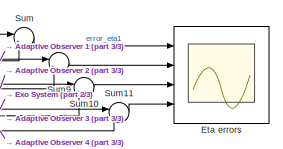
[diagram: root canvas - part 1/3, top right region]
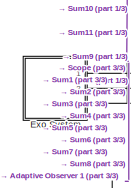
[diagram: root canvas - part 2/3, top left region]
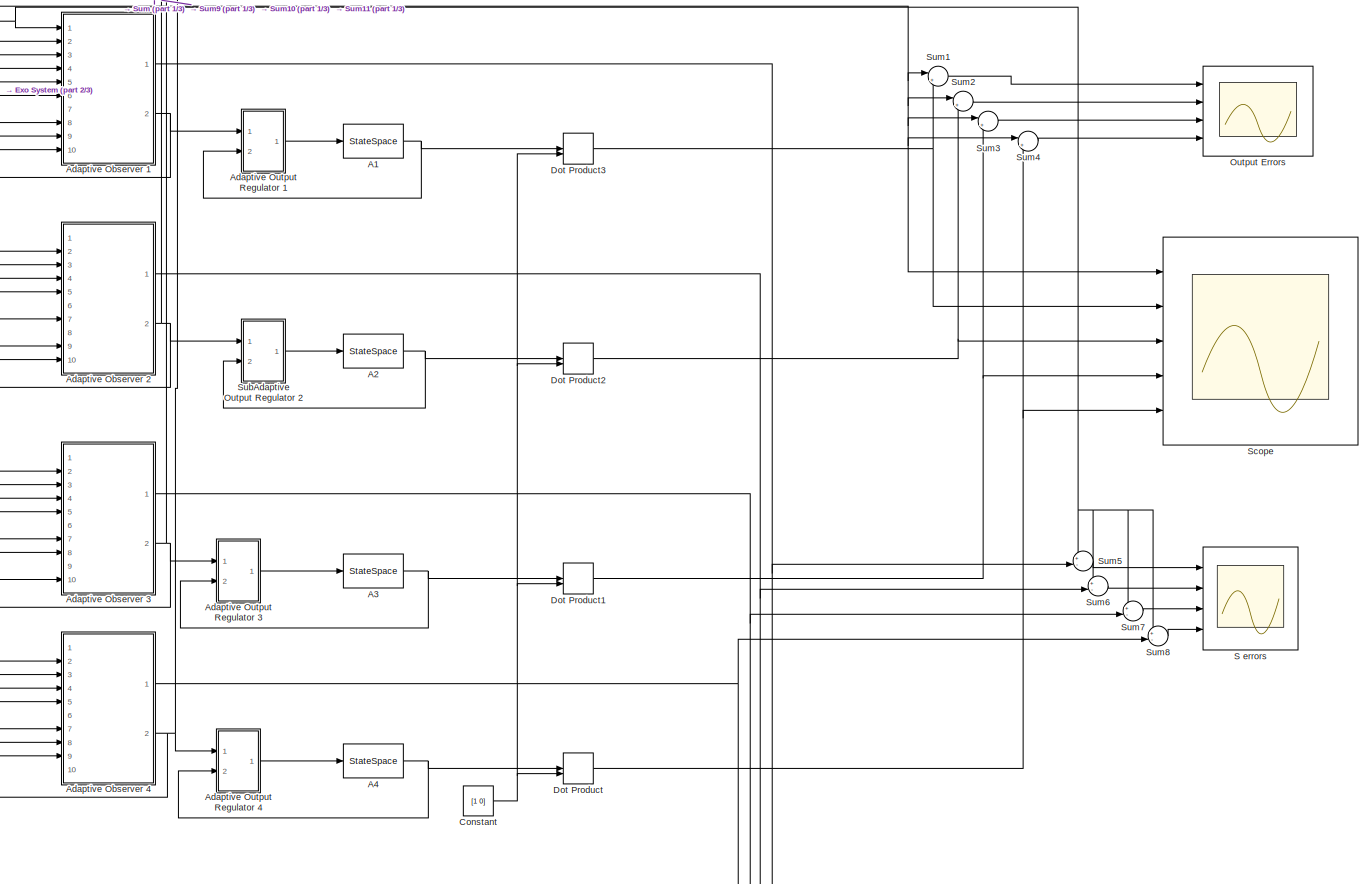
[diagram: root canvas - part 3/3, most of the canvas]
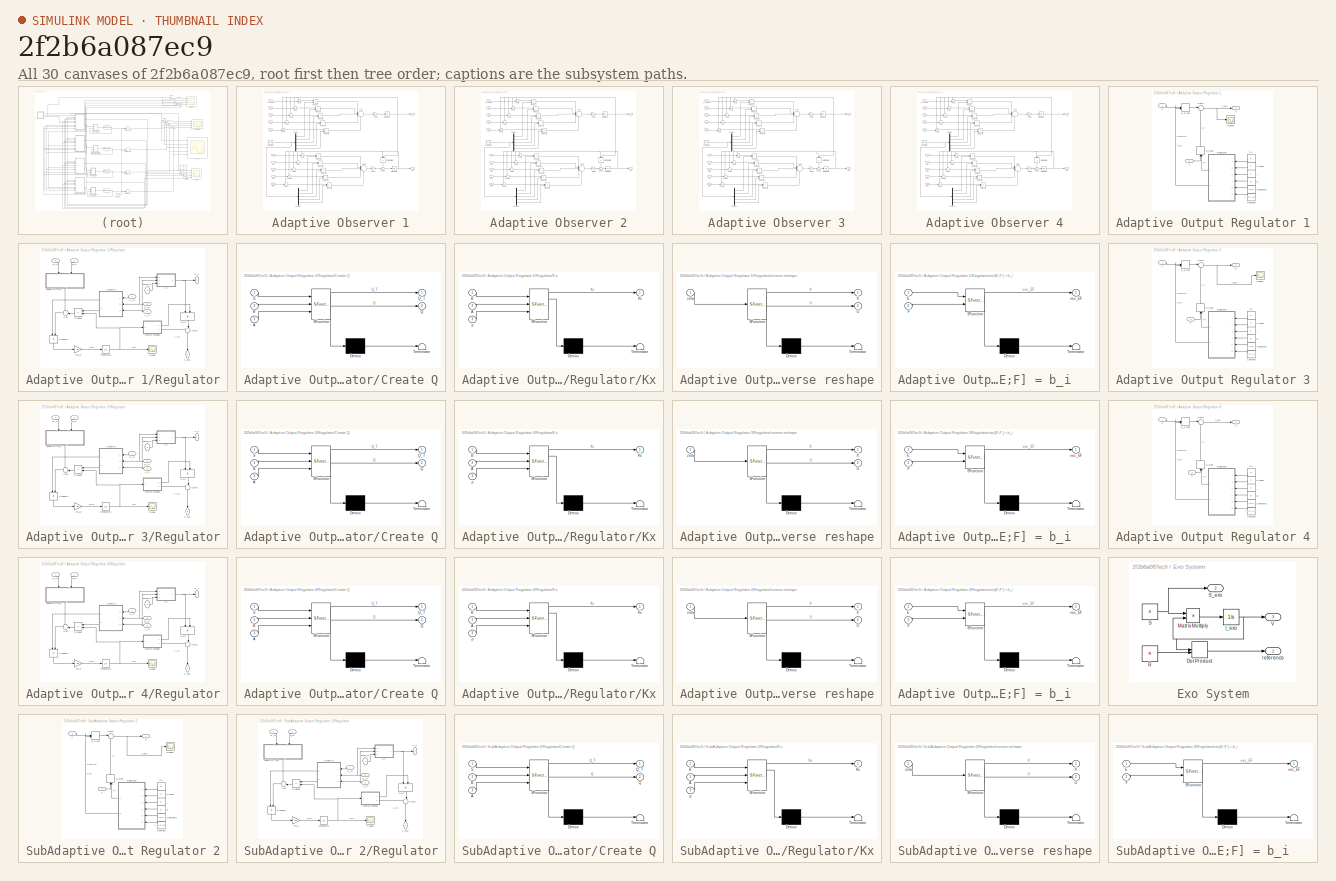
[diagram: thumbnail index - all 30 canvases of the model, root first then tree order]
MODEL slx_2f2b6a087ec9
KIND model
CONFIG AbsTol = auto
CONFIG EnableMultiTasking = off
CONFIG FixedStep = auto
CONFIG MaxStep = auto
CONFIG MinStep = auto
CONFIG RelTol = 1e-3
CONFIG SampleTimeConstraint = Unconstrained
CONFIG Solver = ode23t
CONFIG SolverName = ode23t
CONFIG StartTime = 0.0
CONFIG StopTime = 5
BLOCK [StateSpace] A1
  A = [-10 1;-24 0]
  B = [2;3]
  C = [1 0;0 1]
  D = [0;0]
  Ports = [1, 1]
  X0 = 0
BLOCK [StateSpace] A2
  A = [-12 1;-11 0]
  B = [2;1]
  C = [1 0; 0 1]
  D = [0;0]
  Ports = [1, 1]
  X0 = 0
BLOCK [StateSpace] A3
  A = [3 1;-1 0]
  B = [1;1]
  C = [1 0;0 1]
  D = [0;0]
  Ports = [1, 1]
  X0 = 0
BLOCK [StateSpace] A4
  A = [2 1; -2 0]
  B = [3;1]
  C = [1 0;0 1]
  D = [0 ;0]
  Ports = [1, 1]
  X0 = 0
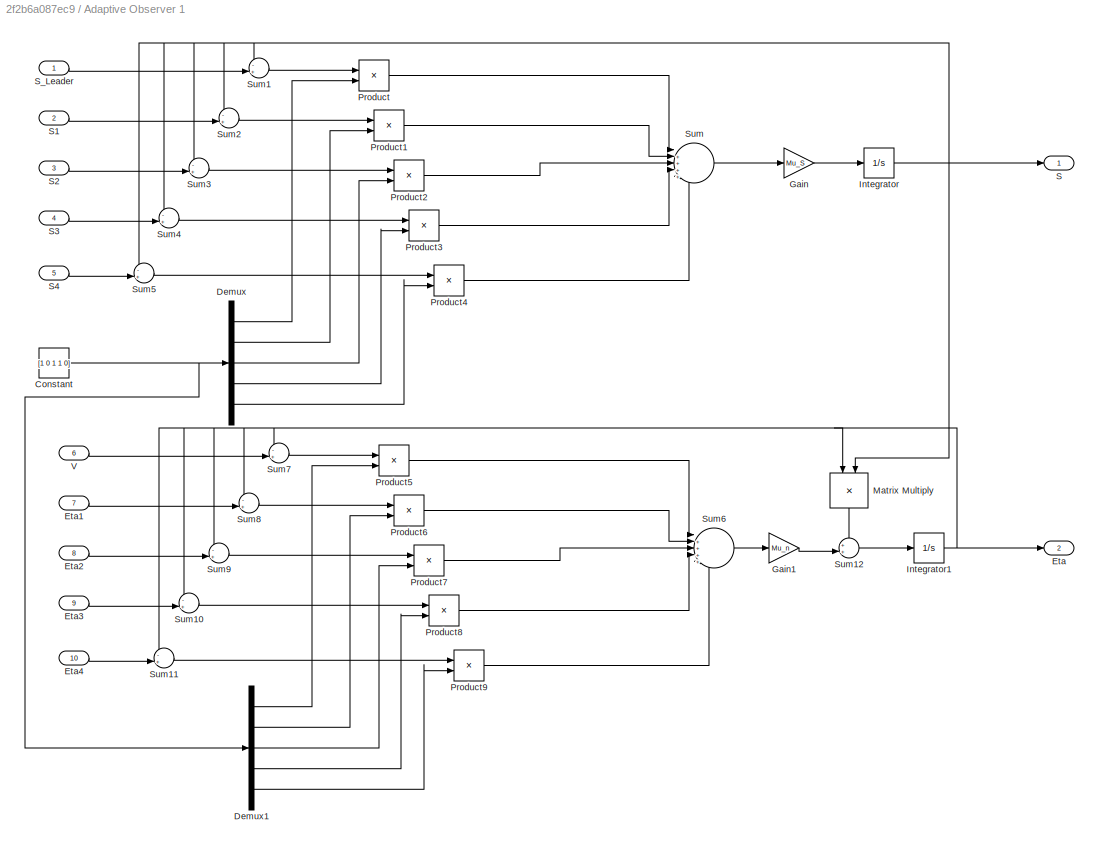
BLOCK [SubSystem] Adaptive Observer 1
  Ports = [10, 2]
  RequestExecContextInheritance = off
  Variant = off
BLOCK [Constant] Adaptive Observer 1/Constant
  Value = [1 0 1 1 0]
BLOCK [Demux] Adaptive Observer 1/Demux
  DisplayOption = bar
  Outputs = 5
  Ports = [1, 5]
BLOCK [Demux] Adaptive Observer 1/Demux1
  DisplayOption = bar
  Outputs = 5
  Ports = [1, 5]
BLOCK [Outport] Adaptive Observer 1/Eta
  IconDisplay = Port number
  Port = 2
BLOCK [Inport] Adaptive Observer 1/Eta1
  IconDisplay = Port number
  Port = 7
BLOCK [Inport] Adaptive Observer 1/Eta2
  IconDisplay = Port number
  Port = 8
BLOCK [Inport] Adaptive Observer 1/Eta3
  IconDisplay = Port number
  Port = 9
BLOCK [Inport] Adaptive Observer 1/Eta4
  IconDisplay = Port number
  Port = 10
BLOCK [Gain] Adaptive Observer 1/Gain
  Gain = Mu_S
  OutDataTypeStr = Inherit: Inherit via internal rule
  ParamDataTypeStr = Inherit: Inherit via internal rule
  SaturateOnIntegerOverflow = off
BLOCK [Gain] Adaptive Observer 1/Gain1
  Gain = Mu_n
  OutDataTypeStr = Inherit: Inherit via internal rule
  ParamDataTypeStr = Inherit: Inherit via internal rule
  SaturateOnIntegerOverflow = off
BLOCK [Integrator] Adaptive Observer 1/Integrator
  InitialCondition = S0
  Ports = [1, 1]
BLOCK [Integrator] Adaptive Observer 1/Integrator1
  Ports = [1, 1]
BLOCK [Product] Adaptive Observer 1/Matrix Multiply
  InputSameDT = off
  Multiplication = Matrix(*)
  OutDataTypeStr = Inherit: Inherit via internal rule
  Ports = [2, 1]
  RndMeth = Floor
  SaturateOnIntegerOverflow = off
BLOCK [Product] Adaptive Observer 1/Product
  InputSameDT = off
  OutDataTypeStr = Inherit: Inherit via internal rule
  Ports = [2, 1]
  RndMeth = Floor
  SaturateOnIntegerOverflow = off
BLOCK [Product] Adaptive Observer 1/Product1
  InputSameDT = off
  OutDataTypeStr = Inherit: Inherit via internal rule
  Ports = [2, 1]
  RndMeth = Floor
  SaturateOnIntegerOverflow = off
BLOCK [Product] Adaptive Observer 1/Product2
  InputSameDT = off
  OutDataTypeStr = Inherit: Inherit via internal rule
  Ports = [2, 1]
  RndMeth = Floor
  SaturateOnIntegerOverflow = off
BLOCK [Product] Adaptive Observer 1/Product3
  InputSameDT = off
  OutDataTypeStr = Inherit: Inherit via internal rule
  Ports = [2, 1]
  RndMeth = Floor
  SaturateOnIntegerOverflow = off
BLOCK [Product] Adaptive Observer 1/Product4
  InputSameDT = off
  OutDataTypeStr = Inherit: Inherit via internal rule
  Ports = [2, 1]
  RndMeth = Floor
  SaturateOnIntegerOverflow = off
BLOCK [Product] Adaptive Observer 1/Product5
  InputSameDT = off
  OutDataTypeStr = Inherit: Inherit via internal rule
  Ports = [2, 1]
  RndMeth = Floor
  SaturateOnIntegerOverflow = off
BLOCK [Product] Adaptive Observer 1/Product6
  InputSameDT = off
  OutDataTypeStr = Inherit: Inherit via internal rule
  Ports = [2, 1]
  RndMeth = Floor
  SaturateOnIntegerOverflow = off
BLOCK [Product] Adaptive Observer 1/Product7
  InputSameDT = off
  OutDataTypeStr = Inherit: Inherit via internal rule
  Ports = [2, 1]
  RndMeth = Floor
  SaturateOnIntegerOverflow = off
BLOCK [Product] Adaptive Observer 1/Product8
  InputSameDT = off
  OutDataTypeStr = Inherit: Inherit via internal rule
  Ports = [2, 1]
  RndMeth = Floor
  SaturateOnIntegerOverflow = off
BLOCK [Product] Adaptive Observer 1/Product9
  InputSameDT = off
  OutDataTypeStr = Inherit: Inherit via internal rule
  Ports = [2, 1]
  RndMeth = Floor
  SaturateOnIntegerOverflow = off
BLOCK [Outport] Adaptive Observer 1/S
  IconDisplay = Port number
BLOCK [Inport] Adaptive Observer 1/S1 
  IconDisplay = Port number
  Port = 2
BLOCK [Inport] Adaptive Observer 1/S2
  IconDisplay = Port number
  Port = 3
BLOCK [Inport] Adaptive Observer 1/S3
  IconDisplay = Port number
  Port = 4
BLOCK [Inport] Adaptive Observer 1/S4
  IconDisplay = Port number
  Port = 5
BLOCK [Inport] Adaptive Observer 1/S_Leader
  IconDisplay = Port number
BLOCK [Sum] Adaptive Observer 1/Sum
  IconShape = round
  InputSameDT = off
  Inputs = |+++++
  OutDataTypeStr = Inherit: Inherit via internal rule
  Ports = [5, 1]
  SaturateOnIntegerOverflow = off
BLOCK [Sum] Adaptive Observer 1/Sum1
  IconShape = round
  InputSameDT = off
  Inputs = -+|
  OutDataTypeStr = Inherit: Inherit via internal rule
  Ports = [2, 1]
  SaturateOnIntegerOverflow = off
BLOCK [Sum] Adaptive Observer 1/Sum10
  IconShape = round
  InputSameDT = off
  Inputs = -+|
  OutDataTypeStr = Inherit: Inherit via internal rule
  Ports = [2, 1]
  SaturateOnIntegerOverflow = off
BLOCK [Sum] Adaptive Observer 1/Sum11
  IconShape = round
  InputSameDT = off
  Inputs = -+|
  OutDataTypeStr = Inherit: Inherit via internal rule
  Ports = [2, 1]
  SaturateOnIntegerOverflow = off
BLOCK [Sum] Adaptive Observer 1/Sum12
  IconShape = round
  InputSameDT = off
  Inputs = ++|
  OutDataTypeStr = Inherit: Inherit via internal rule
  Ports = [2, 1]
  SaturateOnIntegerOverflow = off
BLOCK [Sum] Adaptive Observer 1/Sum2
  IconShape = round
  InputSameDT = off
  Inputs = -+|
  OutDataTypeStr = Inherit: Inherit via internal rule
  Ports = [2, 1]
  SaturateOnIntegerOverflow = off
BLOCK [Sum] Adaptive Observer 1/Sum3
  IconShape = round
  InputSameDT = off
  Inputs = -+|
  OutDataTypeStr = Inherit: Inherit via internal rule
  Ports = [2, 1]
  SaturateOnIntegerOverflow = off
BLOCK [Sum] Adaptive Observer 1/Sum4
  IconShape = round
  InputSameDT = off
  Inputs = -+|
  OutDataTypeStr = Inherit: Inherit via internal rule
  Ports = [2, 1]
  SaturateOnIntegerOverflow = off
BLOCK [Sum] Adaptive Observer 1/Sum5
  IconShape = round
  InputSameDT = off
  Inputs = -+|
  OutDataTypeStr = Inherit: Inherit via internal rule
  Ports = [2, 1]
  SaturateOnIntegerOverflow = off
BLOCK [Sum] Adaptive Observer 1/Sum6
  IconShape = round
  InputSameDT = off
  Inputs = |+++++
  OutDataTypeStr = Inherit: Inherit via internal rule
  Ports = [5, 1]
  SaturateOnIntegerOverflow = off
BLOCK [Sum] Adaptive Observer 1/Sum7
  IconShape = round
  InputSameDT = off
  Inputs = -+|
  OutDataTypeStr = Inherit: Inherit via internal rule
  Ports = [2, 1]
  SaturateOnIntegerOverflow = off
BLOCK [Sum] Adaptive Observer 1/Sum8
  IconShape = round
  InputSameDT = off
  Inputs = -+|
  OutDataTypeStr = Inherit: Inherit via internal rule
  Ports = [2, 1]
  SaturateOnIntegerOverflow = off
BLOCK [Sum] Adaptive Observer 1/Sum9
  IconShape = round
  InputSameDT = off
  Inputs = -+|
  OutDataTypeStr = Inherit: Inherit via internal rule
  Ports = [2, 1]
  SaturateOnIntegerOverflow = off
BLOCK [Inport] Adaptive Observer 1/V
  IconDisplay = Port number
  Port = 6
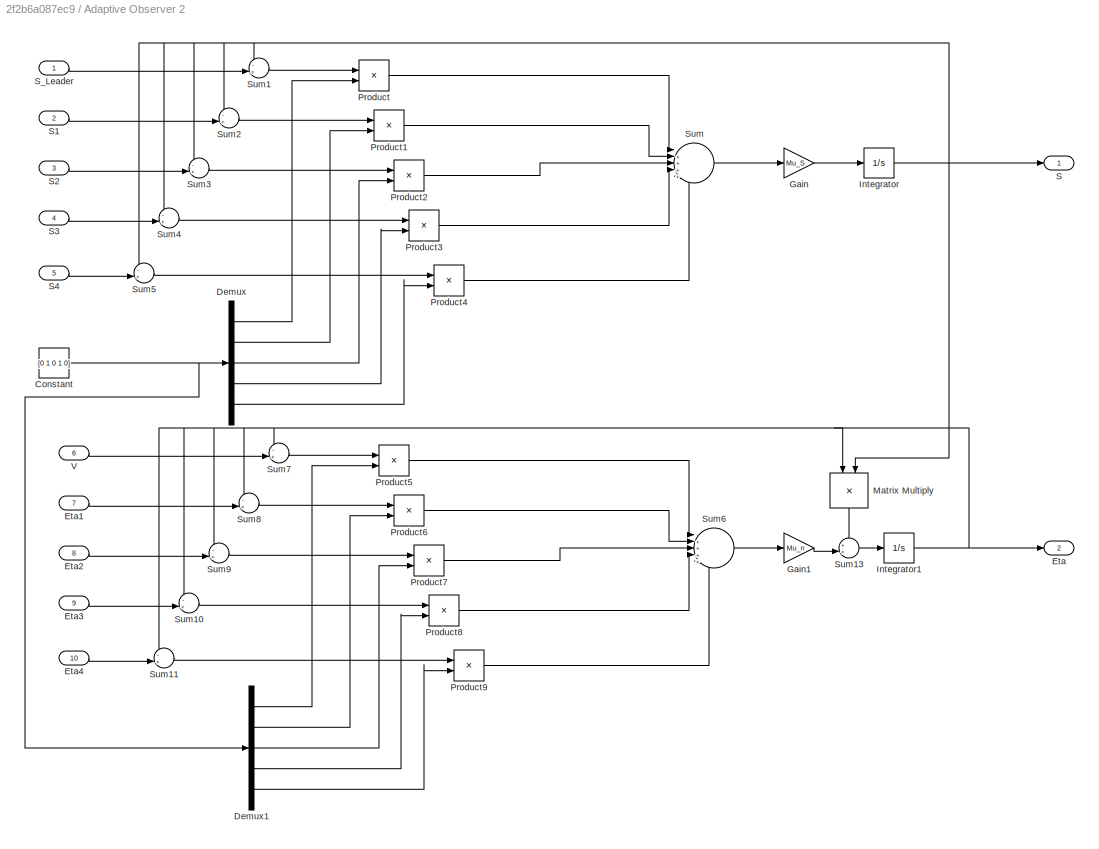
BLOCK [SubSystem] Adaptive Observer 2
  Ports = [10, 2]
  RequestExecContextInheritance = off
  Variant = off
BLOCK [Constant] Adaptive Observer 2/Constant
  Value = [0 1 0 1 0]
BLOCK [Demux] Adaptive Observer 2/Demux
  DisplayOption = bar
  Outputs = 5
  Ports = [1, 5]
BLOCK [Demux] Adaptive Observer 2/Demux1
  DisplayOption = bar
  Outputs = 5
  Ports = [1, 5]
BLOCK [Outport] Adaptive Observer 2/Eta
  IconDisplay = Port number
  Port = 2
BLOCK [Inport] Adaptive Observer 2/Eta1
  IconDisplay = Port number
  Port = 7
BLOCK [Inport] Adaptive Observer 2/Eta2
  IconDisplay = Port number
  Port = 8
BLOCK [Inport] Adaptive Observer 2/Eta3
  IconDisplay = Port number
  Port = 9
BLOCK [Inport] Adaptive Observer 2/Eta4
  IconDisplay = Port number
  Port = 10
BLOCK [Gain] Adaptive Observer 2/Gain
  Gain = Mu_S
  OutDataTypeStr = Inherit: Inherit via internal rule
  ParamDataTypeStr = Inherit: Inherit via internal rule
  SaturateOnIntegerOverflow = off
BLOCK [Gain] Adaptive Observer 2/Gain1
  Gain = Mu_n
  OutDataTypeStr = Inherit: Inherit via internal rule
  ParamDataTypeStr = Inherit: Inherit via internal rule
  SaturateOnIntegerOverflow = off
BLOCK [Integrator] Adaptive Observer 2/Integrator
  InitialCondition = S0
  Ports = [1, 1]
BLOCK [Integrator] Adaptive Observer 2/Integrator1
  Ports = [1, 1]
BLOCK [Product] Adaptive Observer 2/Matrix Multiply
  InputSameDT = off
  Multiplication = Matrix(*)
  OutDataTypeStr = Inherit: Inherit via internal rule
  Ports = [2, 1]
  RndMeth = Floor
  SaturateOnIntegerOverflow = off
BLOCK [Product] Adaptive Observer 2/Product
  InputSameDT = off
  OutDataTypeStr = Inherit: Inherit via internal rule
  Ports = [2, 1]
  RndMeth = Floor
  SaturateOnIntegerOverflow = off
BLOCK [Product] Adaptive Observer 2/Product1
  InputSameDT = off
  OutDataTypeStr = Inherit: Inherit via internal rule
  Ports = [2, 1]
  RndMeth = Floor
  SaturateOnIntegerOverflow = off
BLOCK [Product] Adaptive Observer 2/Product2
  InputSameDT = off
  OutDataTypeStr = Inherit: Inherit via internal rule
  Ports = [2, 1]
  RndMeth = Floor
  SaturateOnIntegerOverflow = off
BLOCK [Product] Adaptive Observer 2/Product3
  InputSameDT = off
  OutDataTypeStr = Inherit: Inherit via internal rule
  Ports = [2, 1]
  RndMeth = Floor
  SaturateOnIntegerOverflow = off
BLOCK [Product] Adaptive Observer 2/Product4
  InputSameDT = off
  OutDataTypeStr = Inherit: Inherit via internal rule
  Ports = [2, 1]
  RndMeth = Floor
  SaturateOnIntegerOverflow = off
BLOCK [Product] Adaptive Observer 2/Product5
  InputSameDT = off
  OutDataTypeStr = Inherit: Inherit via internal rule
  Ports = [2, 1]
  RndMeth = Floor
  SaturateOnIntegerOverflow = off
BLOCK [Product] Adaptive Observer 2/Product6
  InputSameDT = off
  OutDataTypeStr = Inherit: Inherit via internal rule
  Ports = [2, 1]
  RndMeth = Floor
  SaturateOnIntegerOverflow = off
BLOCK [Product] Adaptive Observer 2/Product7
  InputSameDT = off
  OutDataTypeStr = Inherit: Inherit via internal rule
  Ports = [2, 1]
  RndMeth = Floor
  SaturateOnIntegerOverflow = off
BLOCK [Product] Adaptive Observer 2/Product8
  InputSameDT = off
  OutDataTypeStr = Inherit: Inherit via internal rule
  Ports = [2, 1]
  RndMeth = Floor
  SaturateOnIntegerOverflow = off
BLOCK [Product] Adaptive Observer 2/Product9
  InputSameDT = off
  OutDataTypeStr = Inherit: Inherit via internal rule
  Ports = [2, 1]
  RndMeth = Floor
  SaturateOnIntegerOverflow = off
BLOCK [Outport] Adaptive Observer 2/S
  IconDisplay = Port number
BLOCK [Inport] Adaptive Observer 2/S1 
  IconDisplay = Port number
  Port = 2
BLOCK [Inport] Adaptive Observer 2/S2
  IconDisplay = Port number
  Port = 3
BLOCK [Inport] Adaptive Observer 2/S3
  IconDisplay = Port number
  Port = 4
BLOCK [Inport] Adaptive Observer 2/S4
  IconDisplay = Port number
  Port = 5
BLOCK [Inport] Adaptive Observer 2/S_Leader
  IconDisplay = Port number
BLOCK [Sum] Adaptive Observer 2/Sum
  IconShape = round
  InputSameDT = off
  Inputs = |+++++
  OutDataTypeStr = Inherit: Inherit via internal rule
  Ports = [5, 1]
  SaturateOnIntegerOverflow = off
BLOCK [Sum] Adaptive Observer 2/Sum1
  IconShape = round
  InputSameDT = off
  Inputs = -+|
  OutDataTypeStr = Inherit: Inherit via internal rule
  Ports = [2, 1]
  SaturateOnIntegerOverflow = off
BLOCK [Sum] Adaptive Observer 2/Sum10
  IconShape = round
  InputSameDT = off
  Inputs = -+|
  OutDataTypeStr = Inherit: Inherit via internal rule
  Ports = [2, 1]
  SaturateOnIntegerOverflow = off
BLOCK [Sum] Adaptive Observer 2/Sum11
  IconShape = round
  InputSameDT = off
  Inputs = -+|
  OutDataTypeStr = Inherit: Inherit via internal rule
  Ports = [2, 1]
  SaturateOnIntegerOverflow = off
BLOCK [Sum] Adaptive Observer 2/Sum13
  IconShape = round
  InputSameDT = off
  Inputs = ++|
  OutDataTypeStr = Inherit: Inherit via internal rule
  Ports = [2, 1]
  SaturateOnIntegerOverflow = off
BLOCK [Sum] Adaptive Observer 2/Sum2
  IconShape = round
  InputSameDT = off
  Inputs = -+|
  OutDataTypeStr = Inherit: Inherit via internal rule
  Ports = [2, 1]
  SaturateOnIntegerOverflow = off
BLOCK [Sum] Adaptive Observer 2/Sum3
  IconShape = round
  InputSameDT = off
  Inputs = -+|
  OutDataTypeStr = Inherit: Inherit via internal rule
  Ports = [2, 1]
  SaturateOnIntegerOverflow = off
BLOCK [Sum] Adaptive Observer 2/Sum4
  IconShape = round
  InputSameDT = off
  Inputs = -+|
  OutDataTypeStr = Inherit: Inherit via internal rule
  Ports = [2, 1]
  SaturateOnIntegerOverflow = off
BLOCK [Sum] Adaptive Observer 2/Sum5
  IconShape = round
  InputSameDT = off
  Inputs = -+|
  OutDataTypeStr = Inherit: Inherit via internal rule
  Ports = [2, 1]
  SaturateOnIntegerOverflow = off
BLOCK [Sum] Adaptive Observer 2/Sum6
  IconShape = round
  InputSameDT = off
  Inputs = |+++++
  OutDataTypeStr = Inherit: Inherit via internal rule
  Ports = [5, 1]
  SaturateOnIntegerOverflow = off
BLOCK [Sum] Adaptive Observer 2/Sum7
  IconShape = round
  InputSameDT = off
  Inputs = -+|
  OutDataTypeStr = Inherit: Inherit via internal rule
  Ports = [2, 1]
  SaturateOnIntegerOverflow = off
BLOCK [Sum] Adaptive Observer 2/Sum8
  IconShape = round
  InputSameDT = off
  Inputs = -+|
  OutDataTypeStr = Inherit: Inherit via internal rule
  Ports = [2, 1]
  SaturateOnIntegerOverflow = off
BLOCK [Sum] Adaptive Observer 2/Sum9
  IconShape = round
  InputSameDT = off
  Inputs = -+|
  OutDataTypeStr = Inherit: Inherit via internal rule
  Ports = [2, 1]
  SaturateOnIntegerOverflow = off
BLOCK [Inport] Adaptive Observer 2/V
  IconDisplay = Port number
  Port = 6
BLOCK [SubSystem] Adaptive Observer 3
  Ports = [10, 2]
  RequestExecContextInheritance = off
  Variant = off
BLOCK [Constant] Adaptive Observer 3/Constant
  Value = [0 1 1 0 1]
BLOCK [Demux] Adaptive Observer 3/Demux
  DisplayOption = bar
  Outputs = 5
  Ports = [1, 5]
BLOCK [Demux] Adaptive Observer 3/Demux1
  DisplayOption = bar
  Outputs = 5
  Ports = [1, 5]
BLOCK [Outport] Adaptive Observer 3/Eta
  IconDisplay = Port number
  Port = 2
BLOCK [Inport] Adaptive Observer 3/Eta1
  IconDisplay = Port number
  Port = 7
BLOCK [Inport] Adaptive Observer 3/Eta2
  IconDisplay = Port number
  Port = 8
BLOCK [Inport] Adaptive Observer 3/Eta3
  IconDisplay = Port number
  Port = 9
BLOCK [Inport] Adaptive Observer 3/Eta4
  IconDisplay = Port number
  Port = 10
BLOCK [Gain] Adaptive Observer 3/Gain
  Gain = Mu_S
  OutDataTypeStr = Inherit: Inherit via internal rule
  ParamDataTypeStr = Inherit: Inherit via internal rule
  SaturateOnIntegerOverflow = off
BLOCK [Gain] Adaptive Observer 3/Gain1
  Gain = Mu_n
  OutDataTypeStr = Inherit: Inherit via internal rule
  ParamDataTypeStr = Inherit: Inherit via internal rule
  SaturateOnIntegerOverflow = off
BLOCK [Integrator] Adaptive Observer 3/Integrator
  InitialCondition = S0
  Ports = [1, 1]
BLOCK [Integrator] Adaptive Observer 3/Integrator1
  Ports = [1, 1]
BLOCK [Product] Adaptive Observer 3/Matrix Multiply
  InputSameDT = off
  Multiplication = Matrix(*)
  OutDataTypeStr = Inherit: Inherit via internal rule
  Ports = [2, 1]
  RndMeth = Floor
  SaturateOnIntegerOverflow = off
BLOCK [Product] Adaptive Observer 3/Product
  InputSameDT = off
  OutDataTypeStr = Inherit: Inherit via internal rule
  Ports = [2, 1]
  RndMeth = Floor
  SaturateOnIntegerOverflow = off
BLOCK [Product] Adaptive Observer 3/Product1
  InputSameDT = off
  OutDataTypeStr = Inherit: Inherit via internal rule
  Ports = [2, 1]
  RndMeth = Floor
  SaturateOnIntegerOverflow = off
BLOCK [Product] Adaptive Observer 3/Product2
  InputSameDT = off
  OutDataTypeStr = Inherit: Inherit via internal rule
  Ports = [2, 1]
  RndMeth = Floor
  SaturateOnIntegerOverflow = off
BLOCK [Product] Adaptive Observer 3/Product3
  InputSameDT = off
  OutDataTypeStr = Inherit: Inherit via internal rule
  Ports = [2, 1]
  RndMeth = Floor
  SaturateOnIntegerOverflow = off
BLOCK [Product] Adaptive Observer 3/Product4
  InputSameDT = off
  OutDataTypeStr = Inherit: Inherit via internal rule
  Ports = [2, 1]
  RndMeth = Floor
  SaturateOnIntegerOverflow = off
BLOCK [Product] Adaptive Observer 3/Product5
  InputSameDT = off
  OutDataTypeStr = Inherit: Inherit via internal rule
  Ports = [2, 1]
  RndMeth = Floor
  SaturateOnIntegerOverflow = off
BLOCK [Product] Adaptive Observer 3/Product6
  InputSameDT = off
  OutDataTypeStr = Inherit: Inherit via internal rule
  Ports = [2, 1]
  RndMeth = Floor
  SaturateOnIntegerOverflow = off
BLOCK [Product] Adaptive Observer 3/Product7
  InputSameDT = off
  OutDataTypeStr = Inherit: Inherit via internal rule
  Ports = [2, 1]
  RndMeth = Floor
  SaturateOnIntegerOverflow = off
BLOCK [Product] Adaptive Observer 3/Product8
  InputSameDT = off
  OutDataTypeStr = Inherit: Inherit via internal rule
  Ports = [2, 1]
  RndMeth = Floor
  SaturateOnIntegerOverflow = off
BLOCK [Product] Adaptive Observer 3/Product9
  InputSameDT = off
  OutDataTypeStr = Inherit: Inherit via internal rule
  Ports = [2, 1]
  RndMeth = Floor
  SaturateOnIntegerOverflow = off
BLOCK [Outport] Adaptive Observer 3/S
  IconDisplay = Port number
BLOCK [Inport] Adaptive Observer 3/S1 
  IconDisplay = Port number
  Port = 2
BLOCK [Inport] Adaptive Observer 3/S2
  IconDisplay = Port number
  Port = 3
BLOCK [Inport] Adaptive Observer 3/S3
  IconDisplay = Port number
  Port = 4
BLOCK [Inport] Adaptive Observer 3/S4
  IconDisplay = Port number
  Port = 5
BLOCK [Inport] Adaptive Observer 3/S_Leader
  IconDisplay = Port number
BLOCK [Sum] Adaptive Observer 3/Sum
  IconShape = round
  InputSameDT = off
  Inputs = |+++++
  OutDataTypeStr = Inherit: Inherit via internal rule
  Ports = [5, 1]
  SaturateOnIntegerOverflow = off
BLOCK [Sum] Adaptive Observer 3/Sum1
  IconShape = round
  InputSameDT = off
  Inputs = -+|
  OutDataTypeStr = Inherit: Inherit via internal rule
  Ports = [2, 1]
  SaturateOnIntegerOverflow = off
BLOCK [Sum] Adaptive Observer 3/Sum10
  IconShape = round
  InputSameDT = off
  Inputs = -+|
  OutDataTypeStr = Inherit: Inherit via internal rule
  Ports = [2, 1]
  SaturateOnIntegerOverflow = off
BLOCK [Sum] Adaptive Observer 3/Sum11
  IconShape = round
  InputSameDT = off
  Inputs = -+|
  OutDataTypeStr = Inherit: Inherit via internal rule
  Ports = [2, 1]
  SaturateOnIntegerOverflow = off
BLOCK [Sum] Adaptive Observer 3/Sum12
  IconShape = round
  InputSameDT = off
  Inputs = ++|
  OutDataTypeStr = Inherit: Inherit via internal rule
  Ports = [2, 1]
  SaturateOnIntegerOverflow = off
BLOCK [Sum] Adaptive Observer 3/Sum2
  IconShape = round
  InputSameDT = off
  Inputs = -+|
  OutDataTypeStr = Inherit: Inherit via internal rule
  Ports = [2, 1]
  SaturateOnIntegerOverflow = off
BLOCK [Sum] Adaptive Observer 3/Sum3
  IconShape = round
  InputSameDT = off
  Inputs = -+|
  OutDataTypeStr = Inherit: Inherit via internal rule
  Ports = [2, 1]
  SaturateOnIntegerOverflow = off
BLOCK [Sum] Adaptive Observer 3/Sum4
  IconShape = round
  InputSameDT = off
  Inputs = -+|
  OutDataTypeStr = Inherit: Inherit via internal rule
  Ports = [2, 1]
  SaturateOnIntegerOverflow = off
BLOCK [Sum] Adaptive Observer 3/Sum5
  IconShape = round
  InputSameDT = off
  Inputs = -+|
  OutDataTypeStr = Inherit: Inherit via internal rule
  Ports = [2, 1]
  SaturateOnIntegerOverflow = off
BLOCK [Sum] Adaptive Observer 3/Sum6
  IconShape = round
  InputSameDT = off
  Inputs = |+++++
  OutDataTypeStr = Inherit: Inherit via internal rule
  Ports = [5, 1]
  SaturateOnIntegerOverflow = off
BLOCK [Sum] Adaptive Observer 3/Sum7
  IconShape = round
  InputSameDT = off
  Inputs = -+|
  OutDataTypeStr = Inherit: Inherit via internal rule
  Ports = [2, 1]
  SaturateOnIntegerOverflow = off
BLOCK [Sum] Adaptive Observer 3/Sum8
  IconShape = round
  InputSameDT = off
  Inputs = -+|
  OutDataTypeStr = Inherit: Inherit via internal rule
  Ports = [2, 1]
  SaturateOnIntegerOverflow = off
BLOCK [Sum] Adaptive Observer 3/Sum9
  IconShape = round
  InputSameDT = off
  Inputs = -+|
  OutDataTypeStr = Inherit: Inherit via internal rule
  Ports = [2, 1]
  SaturateOnIntegerOverflow = off
BLOCK [Inport] Adaptive Observer 3/V
  IconDisplay = Port number
  Port = 6
BLOCK [SubSystem] Adaptive Observer 4
  Ports = [10, 2]
  RequestExecContextInheritance = off
  Variant = off
BLOCK [Constant] Adaptive Observer 4/Constant
  Value = [0 0 0 1 0]
BLOCK [Demux] Adaptive Observer 4/Demux
  DisplayOption = bar
  Outputs = 5
  Ports = [1, 5]
BLOCK [Demux] Adaptive Observer 4/Demux1
  DisplayOption = bar
  Outputs = 5
  Ports = [1, 5]
BLOCK [Outport] Adaptive Observer 4/Eta
  IconDisplay = Port number
  Port = 2
BLOCK [Inport] Adaptive Observer 4/Eta1
  IconDisplay = Port number
  Port = 7
BLOCK [Inport] Adaptive Observer 4/Eta2
  IconDisplay = Port number
  Port = 8
BLOCK [Inport] Adaptive Observer 4/Eta3
  IconDisplay = Port number
  Port = 9
BLOCK [Inport] Adaptive Observer 4/Eta4
  IconDisplay = Port number
  Port = 10
BLOCK [Gain] Adaptive Observer 4/Gain
  Gain = Mu_S
  OutDataTypeStr = Inherit: Inherit via internal rule
  ParamDataTypeStr = Inherit: Inherit via internal rule
  SaturateOnIntegerOverflow = off
BLOCK [Gain] Adaptive Observer 4/Gain1
  Gain = Mu_n
  OutDataTypeStr = Inherit: Inherit via internal rule
  ParamDataTypeStr = Inherit: Inherit via internal rule
  SaturateOnIntegerOverflow = off
BLOCK [Integrator] Adaptive Observer 4/Integrator
  InitialCondition = S0
  Ports = [1, 1]
BLOCK [Integrator] Adaptive Observer 4/Integrator1
  Ports = [1, 1]
BLOCK [Product] Adaptive Observer 4/Matrix Multiply
  InputSameDT = off
  Multiplication = Matrix(*)
  OutDataTypeStr = Inherit: Inherit via internal rule
  Ports = [2, 1]
  RndMeth = Floor
  SaturateOnIntegerOverflow = off
BLOCK [Product] Adaptive Observer 4/Product
  InputSameDT = off
  OutDataTypeStr = Inherit: Inherit via internal rule
  Ports = [2, 1]
  RndMeth = Floor
  SaturateOnIntegerOverflow = off
BLOCK [Product] Adaptive Observer 4/Product1
  InputSameDT = off
  OutDataTypeStr = Inherit: Inherit via internal rule
  Ports = [2, 1]
  RndMeth = Floor
  SaturateOnIntegerOverflow = off
BLOCK [Product] Adaptive Observer 4/Product2
  InputSameDT = off
  OutDataTypeStr = Inherit: Inherit via internal rule
  Ports = [2, 1]
  RndMeth = Floor
  SaturateOnIntegerOverflow = off
BLOCK [Product] Adaptive Observer 4/Product3
  InputSameDT = off
  OutDataTypeStr = Inherit: Inherit via internal rule
  Ports = [2, 1]
  RndMeth = Floor
  SaturateOnIntegerOverflow = off
BLOCK [Product] Adaptive Observer 4/Product4
  InputSameDT = off
  OutDataTypeStr = Inherit: Inherit via internal rule
  Ports = [2, 1]
  RndMeth = Floor
  SaturateOnIntegerOverflow = off
BLOCK [Product] Adaptive Observer 4/Product5
  InputSameDT = off
  OutDataTypeStr = Inherit: Inherit via internal rule
  Ports = [2, 1]
  RndMeth = Floor
  SaturateOnIntegerOverflow = off
BLOCK [Product] Adaptive Observer 4/Product6
  InputSameDT = off
  OutDataTypeStr = Inherit: Inherit via internal rule
  Ports = [2, 1]
  RndMeth = Floor
  SaturateOnIntegerOverflow = off
BLOCK [Product] Adaptive Observer 4/Product7
  InputSameDT = off
  OutDataTypeStr = Inherit: Inherit via internal rule
  Ports = [2, 1]
  RndMeth = Floor
  SaturateOnIntegerOverflow = off
BLOCK [Product] Adaptive Observer 4/Product8
  InputSameDT = off
  OutDataTypeStr = Inherit: Inherit via internal rule
  Ports = [2, 1]
  RndMeth = Floor
  SaturateOnIntegerOverflow = off
BLOCK [Product] Adaptive Observer 4/Product9
  InputSameDT = off
  OutDataTypeStr = Inherit: Inherit via internal rule
  Ports = [2, 1]
  RndMeth = Floor
  SaturateOnIntegerOverflow = off
BLOCK [Outport] Adaptive Observer 4/S
  IconDisplay = Port number
BLOCK [Inport] Adaptive Observer 4/S1 
  IconDisplay = Port number
  Port = 2
BLOCK [Inport] Adaptive Observer 4/S2
  IconDisplay = Port number
  Port = 3
BLOCK [Inport] Adaptive Observer 4/S3
  IconDisplay = Port number
  Port = 4
BLOCK [Inport] Adaptive Observer 4/S4
  IconDisplay = Port number
  Port = 5
BLOCK [Inport] Adaptive Observer 4/S_Leader
  IconDisplay = Port number
BLOCK [Sum] Adaptive Observer 4/Sum
  IconShape = round
  InputSameDT = off
  Inputs = |+++++
  OutDataTypeStr = Inherit: Inherit via internal rule
  Ports = [5, 1]
  SaturateOnIntegerOverflow = off
BLOCK [Sum] Adaptive Observer 4/Sum1
  IconShape = round
  InputSameDT = off
  Inputs = -+|
  OutDataTypeStr = Inherit: Inherit via internal rule
  Ports = [2, 1]
  SaturateOnIntegerOverflow = off
BLOCK [Sum] Adaptive Observer 4/Sum10
  IconShape = round
  InputSameDT = off
  Inputs = -+|
  OutDataTypeStr = Inherit: Inherit via internal rule
  Ports = [2, 1]
  SaturateOnIntegerOverflow = off
BLOCK [Sum] Adaptive Observer 4/Sum11
  IconShape = round
  InputSameDT = off
  Inputs = -+|
  OutDataTypeStr = Inherit: Inherit via internal rule
  Ports = [2, 1]
  SaturateOnIntegerOverflow = off
BLOCK [Sum] Adaptive Observer 4/Sum12
  IconShape = round
  InputSameDT = off
  Inputs = ++|
  OutDataTypeStr = Inherit: Inherit via internal rule
  Ports = [2, 1]
  SaturateOnIntegerOverflow = off
BLOCK [Sum] Adaptive Observer 4/Sum2
  IconShape = round
  InputSameDT = off
  Inputs = -+|
  OutDataTypeStr = Inherit: Inherit via internal rule
  Ports = [2, 1]
  SaturateOnIntegerOverflow = off
BLOCK [Sum] Adaptive Observer 4/Sum3
  IconShape = round
  InputSameDT = off
  Inputs = -+|
  OutDataTypeStr = Inherit: Inherit via internal rule
  Ports = [2, 1]
  SaturateOnIntegerOverflow = off
BLOCK [Sum] Adaptive Observer 4/Sum4
  IconShape = round
  InputSameDT = off
  Inputs = -+|
  OutDataTypeStr = Inherit: Inherit via internal rule
  Ports = [2, 1]
  SaturateOnIntegerOverflow = off
BLOCK [Sum] Adaptive Observer 4/Sum5
  IconShape = round
  InputSameDT = off
  Inputs = -+|
  OutDataTypeStr = Inherit: Inherit via internal rule
  Ports = [2, 1]
  SaturateOnIntegerOverflow = off
BLOCK [Sum] Adaptive Observer 4/Sum6
  IconShape = round
  InputSameDT = off
  Inputs = |+++++
  OutDataTypeStr = Inherit: Inherit via internal rule
  Ports = [5, 1]
  SaturateOnIntegerOverflow = off
BLOCK [Sum] Adaptive Observer 4/Sum7
  IconShape = round
  InputSameDT = off
  Inputs = -+|
  OutDataTypeStr = Inherit: Inherit via internal rule
  Ports = [2, 1]
  SaturateOnIntegerOverflow = off
BLOCK [Sum] Adaptive Observer 4/Sum8
  IconShape = round
  InputSameDT = off
  Inputs = -+|
  OutDataTypeStr = Inherit: Inherit via internal rule
  Ports = [2, 1]
  SaturateOnIntegerOverflow = off
BLOCK [Sum] Adaptive Observer 4/Sum9
  IconShape = round
  InputSameDT = off
  Inputs = -+|
  OutDataTypeStr = Inherit: Inherit via internal rule
  Ports = [2, 1]
  SaturateOnIntegerOverflow = off
BLOCK [Inport] Adaptive Observer 4/V
  IconDisplay = Port number
  Port = 6
BLOCK [SubSystem] Adaptive Output Regulator 1
  Ports = [2, 1]
  RequestExecContextInheritance = off
  Variant = off
BLOCK [Constant] Adaptive Output Regulator 1/Constant
  Value = [-10 1;-24 0]
BLOCK [Constant] Adaptive Output Regulator 1/Constant1
  Value = [2;3]
BLOCK [DotProduct] Adaptive Output Regulator 1/D_Plant
  OutDataTypeStr = Inherit: Inherit via internal rule
BLOCK [DotProduct] Adaptive Output Regulator 1/D_Reg 
  OutDataTypeStr = Inherit: Inherit via internal rule
BLOCK [Constant] Adaptive Output Regulator 1/E
  Value = E
BLOCK [Constant] Adaptive Output Regulator 1/Places
  Value = P
  VectorParams1D = off
BLOCK [SubSystem] Adaptive Output Regulator 1/Regulator
  Ports = [6, 2]
  RequestExecContextInheritance = off
  Variant = off
BLOCK [Gain] Adaptive Output Regulator 1/Regulator/-mu_3
  Gain = -mu
  OutDataTypeStr = Inherit: Inherit via internal rule
  ParamDataTypeStr = Inherit: Inherit via internal rule
  SaturateOnIntegerOverflow = off
BLOCK [Inport] Adaptive Output Regulator 1/Regulator/A_in
  IconDisplay = Port number
  Port = 6
BLOCK [Inport] Adaptive Output Regulator 1/Regulator/B_in
  IconDisplay = Port number
  Port = 5
BLOCK [SubSystem] Adaptive Output Regulator 1/Regulator/Create Q
  ErrorFcn = Stateflow.Translate.translate
  PermitHierarchicalResolution = ExplicitOnly
  Ports = [3, 2]
  RequestExecContextInheritance = off
  SFBlockType = MATLAB Function
  TreatAsAtomicUnit = on
  Variant = off
BLOCK [Demux] Adaptive Output Regulator 1/Regulator/Create Q/ Demux 
  Outputs = 1
  Ports = [1, 1]
BLOCK [S-Function] Adaptive Output Regulator 1/Regulator/Create Q/ SFunction 
  EnableBusSupport = on
  FunctionName = sf_sfun
  PortCounts = [3 3]
  Ports = [3, 3]
  SFcnIsStateOwnerBlock = off
  SFunctionDeploymentMode = off
  Tag = Stateflow S-Function Adaptive_Distributed_Observer 1
BLOCK [Terminator] Adaptive Output Regulator 1/Regulator/Create Q/ Terminator 
BLOCK [Inport] Adaptive Output Regulator 1/Regulator/Create Q/A
  IconDisplay = Port number
  Port = 3
BLOCK [Inport] Adaptive Output Regulator 1/Regulator/Create Q/B
  IconDisplay = Port number
  Port = 2
BLOCK [Outport] Adaptive Output Regulator 1/Regulator/Create Q/Q
  IconDisplay = Port number
  Port = 2
BLOCK [Outport] Adaptive Output Regulator 1/Regulator/Create Q/Q_T
  IconDisplay = Port number
BLOCK [Inport] Adaptive Output Regulator 1/Regulator/Create Q/S
  IconDisplay = Port number
BLOCK [Inport] Adaptive Output Regulator 1/Regulator/E_in
  IconDisplay = Port number
  Port = 4
BLOCK [Inport] Adaptive Output Regulator 1/Regulator/F_in
  IconDisplay = Port number
  Port = 3
BLOCK [Integrator] Adaptive Output Regulator 1/Regulator/Integrator1
  InitialCondition = Z0
  Ports = [1, 1]
BLOCK [Outport] Adaptive Output Regulator 1/Regulator/K_eta
  IconDisplay = Port number
  Port = 2
BLOCK [Outport] Adaptive Output Regulator 1/Regulator/K_x
  IconDisplay = Port number
BLOCK [SubSystem] Adaptive Output Regulator 1/Regulator/Kx
  ErrorFcn = Stateflow.Translate.translate
  PermitHierarchicalResolution = ExplicitOnly
  Ports = [3, 1]
  RequestExecContextInheritance = off
  SFBlockType = MATLAB Function
  TreatAsAtomicUnit = on
  Variant = off
BLOCK [Product] Adaptive Output Regulator 1/Regulator/Kx*X
  InputSameDT = off
  Inputs = **
  Multiplication = Matrix(*)
  OutDataTypeStr = Inherit: Inherit via internal rule
  Ports = [2, 1]
  RndMeth = Floor
  SaturateOnIntegerOverflow = off
BLOCK [Demux] Adaptive Output Regulator 1/Regulator/Kx/ Demux 
  Outputs = 1
  Ports = [1, 1]
BLOCK [S-Function] Adaptive Output Regulator 1/Regulator/Kx/ SFunction 
  EnableBusSupport = on
  FunctionName = sf_sfun
  PortCounts = [3 2]
  Ports = [3, 2]
  SFcnIsStateOwnerBlock = off
  SFunctionDeploymentMode = off
  Tag = Stateflow S-Function Adaptive_Distributed_Observer 2
BLOCK [Terminator] Adaptive Output Regulator 1/Regulator/Kx/ Terminator 
BLOCK [Inport] Adaptive Output Regulator 1/Regulator/Kx/A
  IconDisplay = Port number
  Port = 2
BLOCK [Inport] Adaptive Output Regulator 1/Regulator/Kx/B
  IconDisplay = Port number
BLOCK [Outport] Adaptive Output Regulator 1/Regulator/Kx/Kx
  IconDisplay = Port number
BLOCK [Inport] Adaptive Output Regulator 1/Regulator/Kx/p
  IconDisplay = Port number
  Port = 3
BLOCK [Product] Adaptive Output Regulator 1/Regulator/Product
  InputSameDT = off
  Multiplication = Matrix(*)
  OutDataTypeStr = Inherit: Inherit via internal rule
  Ports = [2, 1]
  RndMeth = Floor
  SaturateOnIntegerOverflow = off
BLOCK [Product] Adaptive Output Regulator 1/Regulator/Product1
  InputSameDT = off
  Multiplication = Matrix(*)
  OutDataTypeStr = Inherit: Inherit via internal rule
  Ports = [2, 1]
  RndMeth = Floor
  SaturateOnIntegerOverflow = off
BLOCK [Inport] Adaptive Output Regulator 1/Regulator/S_in
  IconDisplay = Port number
BLOCK [Scope] Adaptive Output Regulator 1/Regulator/Scope
  NumInputPorts = 1
  Ports = [1]
  ScopeSpecificationString = Simulink.scopes.TimeScopeBlockCfg('CurrentConfiguration', extmgr.ConfigurationSet(extmgr.Configuration('Core','General UI',true),extmgr.Configuration('Core','Source UI',true),extmgr.Configuration('Sources','WiredSimulink',true,'DataLoggingVariableName','ScopeData5'),extmgr.Configuration('Visuals','Time Domain',true,'SerializedDisplays',{struct('MinYLimReal','-6.34996','MaxYLimReal','11.30274','YLa...<+1390ch>  <repeated x4 — deduplicated; at blocks: Scope>
BLOCK [Sum] Adaptive Output Regulator 1/Regulator/Sum
  IconShape = round
  InputSameDT = off
  Inputs = -+|
  OutDataTypeStr = Inherit: Inherit via internal rule
  Ports = [2, 1]
  SaturateOnIntegerOverflow = off
BLOCK [Sum] Adaptive Output Regulator 1/Regulator/Sum1
  IconShape = round
  InputSameDT = off
  Inputs = +-|
  OutDataTypeStr = Inherit: Inherit via internal rule
  Ports = [2, 1]
  SaturateOnIntegerOverflow = off
BLOCK [SubSystem] Adaptive Output Regulator 1/Regulator/inverse reshape
  ErrorFcn = Stateflow.Translate.translate
  PermitHierarchicalResolution = ExplicitOnly
  Ports = [1, 2]
  RequestExecContextInheritance = off
  SFBlockType = MATLAB Function
  TreatAsAtomicUnit = on
  Variant = off
BLOCK [Demux] Adaptive Output Regulator 1/Regulator/inverse reshape/ Demux 
  Outputs = 1
  Ports = [1, 1]
BLOCK [S-Function] Adaptive Output Regulator 1/Regulator/inverse reshape/ SFunction 
  EnableBusSupport = on
  FunctionName = sf_sfun
  PortCounts = [1 3]
  Ports = [1, 3]
  SFcnIsStateOwnerBlock = off
  SFunctionDeploymentMode = off
  Tag = Stateflow S-Function Adaptive_Distributed_Observer 7
BLOCK [Terminator] Adaptive Output Regulator 1/Regulator/inverse reshape/ Terminator 
BLOCK [Outport] Adaptive Output Regulator 1/Regulator/inverse reshape/U
  IconDisplay = Port number
  Port = 2
BLOCK [Outport] Adaptive Output Regulator 1/Regulator/inverse reshape/X
  IconDisplay = Port number
BLOCK [Inport] Adaptive Output Regulator 1/Regulator/inverse reshape/zeta
  IconDisplay = Port number
BLOCK [Inport] Adaptive Output Regulator 1/Regulator/poles_in
  IconDisplay = Port number
  Port = 2
BLOCK [SubSystem] Adaptive Output Regulator 1/Regulator/vec[E;F] = b_i   
  ErrorFcn = Stateflow.Translate.translate
  PermitHierarchicalResolution = ExplicitOnly
  Ports = [2, 1]
  RequestExecContextInheritance = off
  SFBlockType = MATLAB Function
  TreatAsAtomicUnit = on
  Variant = off
BLOCK [Demux] Adaptive Output Regulator 1/Regulator/vec[E;F] = b_i   / Demux 
  Outputs = 1
  Ports = [1, 1]
BLOCK [S-Function] Adaptive Output Regulator 1/Regulator/vec[E;F] = b_i   / SFunction 
  EnableBusSupport = on
  FunctionName = sf_sfun
  PortCounts = [2 2]
  Ports = [2, 2]
  SFcnIsStateOwnerBlock = off
  SFunctionDeploymentMode = off
  Tag = Stateflow S-Function Adaptive_Distributed_Observer 8
BLOCK [Terminator] Adaptive Output Regulator 1/Regulator/vec[E;F] = b_i   / Terminator 
BLOCK [Inport] Adaptive Output Regulator 1/Regulator/vec[E;F] = b_i   /E
  IconDisplay = Port number
BLOCK [Inport] Adaptive Output Regulator 1/Regulator/vec[E;F] = b_i   /F
  IconDisplay = Port number
  Port = 2
BLOCK [Outport] Adaptive Output Regulator 1/Regulator/vec[E;F] = b_i   /vec_EF
  IconDisplay = Port number
BLOCK [Constant] Adaptive Output Regulator 1/S1
  Value = S
BLOCK [Scope] Adaptive Output Regulator 1/Scope1
  NumInputPorts = 1
  Ports = [1]
  ScopeSpecificationString = Simulink.scopes.TimeScopeBlockCfg('CurrentConfiguration', extmgr.ConfigurationSet(extmgr.Configuration('Core','General UI',true),extmgr.Configuration('Core','Source UI',true),extmgr.Configuration('Sources','WiredSimulink',true,'DataLoggingVariableName','ScopeData4'),extmgr.Configuration('Visuals','Time Domain',true,'SerializedDisplays',{struct('MinYLimReal','-13.16657','MaxYLimReal','13.68517','YL...<+1399ch>  <repeated x3 — deduplicated; at blocks: Scope1>
BLOCK [Sum] Adaptive Output Regulator 1/Sum1
  IconShape = round
  InputSameDT = off
  Inputs = |++
  OutDataTypeStr = Inherit: Inherit via internal rule
  Ports = [2, 1]
  SaturateOnIntegerOverflow = off
BLOCK [Outport] Adaptive Output Regulator 1/U
  IconDisplay = Port number
BLOCK [Inport] Adaptive Output Regulator 1/V
  IconDisplay = Port number
BLOCK [Inport] Adaptive Output Regulator 1/X
  IconDisplay = Port number
  Port = 2
BLOCK [Constant] Adaptive Output Regulator 1/_
  Value = F
  VectorParams1D = off
BLOCK [SubSystem] Adaptive Output Regulator 3
  Ports = [2, 1]
  RequestExecContextInheritance = off
  Variant = off
BLOCK [Constant] Adaptive Output Regulator 3/Constant
  Value = [3 1;-1 0]
BLOCK [Constant] Adaptive Output Regulator 3/Constant1
  Value = [1;1]
BLOCK [DotProduct] Adaptive Output Regulator 3/D_Plant
  OutDataTypeStr = Inherit: Inherit via internal rule
BLOCK [DotProduct] Adaptive Output Regulator 3/D_Reg 
  OutDataTypeStr = Inherit: Inherit via internal rule
BLOCK [Constant] Adaptive Output Regulator 3/E
  Value = E
BLOCK [Constant] Adaptive Output Regulator 3/Places
  Value = P
  VectorParams1D = off
BLOCK [SubSystem] Adaptive Output Regulator 3/Regulator
  Ports = [6, 2]
  RequestExecContextInheritance = off
  Variant = off
BLOCK [Gain] Adaptive Output Regulator 3/Regulator/-mu_3
  Gain = -mu
  OutDataTypeStr = Inherit: Inherit via internal rule
  ParamDataTypeStr = Inherit: Inherit via internal rule
  SaturateOnIntegerOverflow = off
BLOCK [Inport] Adaptive Output Regulator 3/Regulator/A_in
  IconDisplay = Port number
  Port = 6
BLOCK [Inport] Adaptive Output Regulator 3/Regulator/B_in
  IconDisplay = Port number
  Port = 5
BLOCK [SubSystem] Adaptive Output Regulator 3/Regulator/Create Q
  ErrorFcn = Stateflow.Translate.translate
  PermitHierarchicalResolution = ExplicitOnly
  Ports = [3, 2]
  RequestExecContextInheritance = off
  SFBlockType = MATLAB Function
  TreatAsAtomicUnit = on
  Variant = off
BLOCK [Demux] Adaptive Output Regulator 3/Regulator/Create Q/ Demux 
  Outputs = 1
  Ports = [1, 1]
BLOCK [S-Function] Adaptive Output Regulator 3/Regulator/Create Q/ SFunction 
  EnableBusSupport = on
  FunctionName = sf_sfun
  PortCounts = [3 3]
  Ports = [3, 3]
  SFcnIsStateOwnerBlock = off
  SFunctionDeploymentMode = off
  Tag = Stateflow S-Function Adaptive_Distributed_Observer 9
BLOCK [Terminator] Adaptive Output Regulator 3/Regulator/Create Q/ Terminator 
BLOCK [Inport] Adaptive Output Regulator 3/Regulator/Create Q/A
  IconDisplay = Port number
  Port = 3
BLOCK [Inport] Adaptive Output Regulator 3/Regulator/Create Q/B
  IconDisplay = Port number
  Port = 2
BLOCK [Outport] Adaptive Output Regulator 3/Regulator/Create Q/Q
  IconDisplay = Port number
  Port = 2
BLOCK [Outport] Adaptive Output Regulator 3/Regulator/Create Q/Q_T
  IconDisplay = Port number
BLOCK [Inport] Adaptive Output Regulator 3/Regulator/Create Q/S
  IconDisplay = Port number
BLOCK [Inport] Adaptive Output Regulator 3/Regulator/E_in
  IconDisplay = Port number
  Port = 4
BLOCK [Inport] Adaptive Output Regulator 3/Regulator/F_in
  IconDisplay = Port number
  Port = 3
BLOCK [Integrator] Adaptive Output Regulator 3/Regulator/Integrator1
  InitialCondition = Z0
  Ports = [1, 1]
BLOCK [Outport] Adaptive Output Regulator 3/Regulator/K_eta
  IconDisplay = Port number
  Port = 2
BLOCK [Outport] Adaptive Output Regulator 3/Regulator/K_x
  IconDisplay = Port number
BLOCK [SubSystem] Adaptive Output Regulator 3/Regulator/Kx
  ErrorFcn = Stateflow.Translate.translate
  PermitHierarchicalResolution = ExplicitOnly
  Ports = [3, 1]
  RequestExecContextInheritance = off
  SFBlockType = MATLAB Function
  TreatAsAtomicUnit = on
  Variant = off
BLOCK [Product] Adaptive Output Regulator 3/Regulator/Kx*X
  InputSameDT = off
  Inputs = **
  Multiplication = Matrix(*)
  OutDataTypeStr = Inherit: Inherit via internal rule
  Ports = [2, 1]
  RndMeth = Floor
  SaturateOnIntegerOverflow = off
BLOCK [Demux] Adaptive Output Regulator 3/Regulator/Kx/ Demux 
  Outputs = 1
  Ports = [1, 1]
BLOCK [S-Function] Adaptive Output Regulator 3/Regulator/Kx/ SFunction 
  EnableBusSupport = on
  FunctionName = sf_sfun
  PortCounts = [3 2]
  Ports = [3, 2]
  SFcnIsStateOwnerBlock = off
  SFunctionDeploymentMode = off
  Tag = Stateflow S-Function Adaptive_Distributed_Observer 10
BLOCK [Terminator] Adaptive Output Regulator 3/Regulator/Kx/ Terminator 
BLOCK [Inport] Adaptive Output Regulator 3/Regulator/Kx/A
  IconDisplay = Port number
  Port = 2
BLOCK [Inport] Adaptive Output Regulator 3/Regulator/Kx/B
  IconDisplay = Port number
BLOCK [Outport] Adaptive Output Regulator 3/Regulator/Kx/Kx
  IconDisplay = Port number
BLOCK [Inport] Adaptive Output Regulator 3/Regulator/Kx/p
  IconDisplay = Port number
  Port = 3
BLOCK [Product] Adaptive Output Regulator 3/Regulator/Product
  InputSameDT = off
  Multiplication = Matrix(*)
  OutDataTypeStr = Inherit: Inherit via internal rule
  Ports = [2, 1]
  RndMeth = Floor
  SaturateOnIntegerOverflow = off
BLOCK [Product] Adaptive Output Regulator 3/Regulator/Product1
  InputSameDT = off
  Multiplication = Matrix(*)
  OutDataTypeStr = Inherit: Inherit via internal rule
  Ports = [2, 1]
  RndMeth = Floor
  SaturateOnIntegerOverflow = off
BLOCK [Inport] Adaptive Output Regulator 3/Regulator/S_in
  IconDisplay = Port number
BLOCK [Scope] Adaptive Output Regulator 3/Regulator/Scope
  NumInputPorts = 1
  Ports = [1]
BLOCK [Sum] Adaptive Output Regulator 3/Regulator/Sum
  IconShape = round
  InputSameDT = off
  Inputs = -+|
  OutDataTypeStr = Inherit: Inherit via internal rule
  Ports = [2, 1]
  SaturateOnIntegerOverflow = off
BLOCK [Sum] Adaptive Output Regulator 3/Regulator/Sum1
  IconShape = round
  InputSameDT = off
  Inputs = +-|
  OutDataTypeStr = Inherit: Inherit via internal rule
  Ports = [2, 1]
  SaturateOnIntegerOverflow = off
BLOCK [SubSystem] Adaptive Output Regulator 3/Regulator/inverse reshape
  ErrorFcn = Stateflow.Translate.translate
  PermitHierarchicalResolution = ExplicitOnly
  Ports = [1, 2]
  RequestExecContextInheritance = off
  SFBlockType = MATLAB Function
  TreatAsAtomicUnit = on
  Variant = off
BLOCK [Demux] Adaptive Output Regulator 3/Regulator/inverse reshape/ Demux 
  Outputs = 1
  Ports = [1, 1]
BLOCK [S-Function] Adaptive Output Regulator 3/Regulator/inverse reshape/ SFunction 
  EnableBusSupport = on
  FunctionName = sf_sfun
  PortCounts = [1 3]
  Ports = [1, 3]
  SFcnIsStateOwnerBlock = off
  SFunctionDeploymentMode = off
  Tag = Stateflow S-Function Adaptive_Distributed_Observer 11
BLOCK [Terminator] Adaptive Output Regulator 3/Regulator/inverse reshape/ Terminator 
BLOCK [Outport] Adaptive Output Regulator 3/Regulator/inverse reshape/U
  IconDisplay = Port number
  Port = 2
BLOCK [Outport] Adaptive Output Regulator 3/Regulator/inverse reshape/X
  IconDisplay = Port number
BLOCK [Inport] Adaptive Output Regulator 3/Regulator/inverse reshape/zeta
  IconDisplay = Port number
BLOCK [Inport] Adaptive Output Regulator 3/Regulator/poles_in
  IconDisplay = Port number
  Port = 2
BLOCK [SubSystem] Adaptive Output Regulator 3/Regulator/vec[E;F] = b_i   
  ErrorFcn = Stateflow.Translate.translate
  PermitHierarchicalResolution = ExplicitOnly
  Ports = [2, 1]
  RequestExecContextInheritance = off
  SFBlockType = MATLAB Function
  TreatAsAtomicUnit = on
  Variant = off
BLOCK [Demux] Adaptive Output Regulator 3/Regulator/vec[E;F] = b_i   / Demux 
  Outputs = 1
  Ports = [1, 1]
BLOCK [S-Function] Adaptive Output Regulator 3/Regulator/vec[E;F] = b_i   / SFunction 
  EnableBusSupport = on
  FunctionName = sf_sfun
  PortCounts = [2 2]
  Ports = [2, 2]
  SFcnIsStateOwnerBlock = off
  SFunctionDeploymentMode = off
  Tag = Stateflow S-Function Adaptive_Distributed_Observer 12
BLOCK [Terminator] Adaptive Output Regulator 3/Regulator/vec[E;F] = b_i   / Terminator 
BLOCK [Inport] Adaptive Output Regulator 3/Regulator/vec[E;F] = b_i   /E
  IconDisplay = Port number
BLOCK [Inport] Adaptive Output Regulator 3/Regulator/vec[E;F] = b_i   /F
  IconDisplay = Port number
  Port = 2
BLOCK [Outport] Adaptive Output Regulator 3/Regulator/vec[E;F] = b_i   /vec_EF
  IconDisplay = Port number
BLOCK [Constant] Adaptive Output Regulator 3/S1
  Value = S
BLOCK [Scope] Adaptive Output Regulator 3/Scope1
  NumInputPorts = 1
  Ports = [1]
BLOCK [Sum] Adaptive Output Regulator 3/Sum1
  IconShape = round
  InputSameDT = off
  Inputs = |++
  OutDataTypeStr = Inherit: Inherit via internal rule
  Ports = [2, 1]
  SaturateOnIntegerOverflow = off
BLOCK [Outport] Adaptive Output Regulator 3/U
  IconDisplay = Port number
BLOCK [Inport] Adaptive Output Regulator 3/V
  IconDisplay = Port number
BLOCK [Inport] Adaptive Output Regulator 3/X
  IconDisplay = Port number
  Port = 2
BLOCK [Constant] Adaptive Output Regulator 3/_
  Value = F
  VectorParams1D = off
BLOCK [SubSystem] Adaptive Output Regulator 4
  Ports = [2, 1]
  RequestExecContextInheritance = off
  Variant = off
BLOCK [Constant] Adaptive Output Regulator 4/Constant
  Value = [2 1;-2 0]
BLOCK [Constant] Adaptive Output Regulator 4/Constant1
  Value = [3;1]
BLOCK [DotProduct] Adaptive Output Regulator 4/D_Plant
  OutDataTypeStr = Inherit: Inherit via internal rule
BLOCK [DotProduct] Adaptive Output Regulator 4/D_Reg 
  OutDataTypeStr = Inherit: Inherit via internal rule
BLOCK [Constant] Adaptive Output Regulator 4/E
  Value = E
BLOCK [Constant] Adaptive Output Regulator 4/Places
  Value = P
  VectorParams1D = off
BLOCK [SubSystem] Adaptive Output Regulator 4/Regulator
  Ports = [6, 2]
  RequestExecContextInheritance = off
  Variant = off
BLOCK [Gain] Adaptive Output Regulator 4/Regulator/-mu_3
  Gain = -mu
  OutDataTypeStr = Inherit: Inherit via internal rule
  ParamDataTypeStr = Inherit: Inherit via internal rule
  SaturateOnIntegerOverflow = off
BLOCK [Inport] Adaptive Output Regulator 4/Regulator/A_in
  IconDisplay = Port number
  Port = 6
BLOCK [Inport] Adaptive Output Regulator 4/Regulator/B_in
  IconDisplay = Port number
  Port = 5
BLOCK [SubSystem] Adaptive Output Regulator 4/Regulator/Create Q
  ErrorFcn = Stateflow.Translate.translate
  PermitHierarchicalResolution = ExplicitOnly
  Ports = [3, 2]
  RequestExecContextInheritance = off
  SFBlockType = MATLAB Function
  TreatAsAtomicUnit = on
  Variant = off
BLOCK [Demux] Adaptive Output Regulator 4/Regulator/Create Q/ Demux 
  Outputs = 1
  Ports = [1, 1]
BLOCK [S-Function] Adaptive Output Regulator 4/Regulator/Create Q/ SFunction 
  EnableBusSupport = on
  FunctionName = sf_sfun
  PortCounts = [3 3]
  Ports = [3, 3]
  SFcnIsStateOwnerBlock = off
  SFunctionDeploymentMode = off
  Tag = Stateflow S-Function Adaptive_Distributed_Observer 13
BLOCK [Terminator] Adaptive Output Regulator 4/Regulator/Create Q/ Terminator 
BLOCK [Inport] Adaptive Output Regulator 4/Regulator/Create Q/A
  IconDisplay = Port number
  Port = 3
BLOCK [Inport] Adaptive Output Regulator 4/Regulator/Create Q/B
  IconDisplay = Port number
  Port = 2
BLOCK [Outport] Adaptive Output Regulator 4/Regulator/Create Q/Q
  IconDisplay = Port number
  Port = 2
BLOCK [Outport] Adaptive Output Regulator 4/Regulator/Create Q/Q_T
  IconDisplay = Port number
BLOCK [Inport] Adaptive Output Regulator 4/Regulator/Create Q/S
  IconDisplay = Port number
BLOCK [Inport] Adaptive Output Regulator 4/Regulator/E_in
  IconDisplay = Port number
  Port = 4
BLOCK [Inport] Adaptive Output Regulator 4/Regulator/F_in
  IconDisplay = Port number
  Port = 3
BLOCK [Integrator] Adaptive Output Regulator 4/Regulator/Integrator1
  InitialCondition = Z0
  Ports = [1, 1]
BLOCK [Outport] Adaptive Output Regulator 4/Regulator/K_eta
  IconDisplay = Port number
  Port = 2
BLOCK [Outport] Adaptive Output Regulator 4/Regulator/K_x
  IconDisplay = Port number
BLOCK [SubSystem] Adaptive Output Regulator 4/Regulator/Kx
  ErrorFcn = Stateflow.Translate.translate
  PermitHierarchicalResolution = ExplicitOnly
  Ports = [3, 1]
  RequestExecContextInheritance = off
  SFBlockType = MATLAB Function
  TreatAsAtomicUnit = on
  Variant = off
BLOCK [Product] Adaptive Output Regulator 4/Regulator/Kx*X
  InputSameDT = off
  Inputs = **
  Multiplication = Matrix(*)
  OutDataTypeStr = Inherit: Inherit via internal rule
  Ports = [2, 1]
  RndMeth = Floor
  SaturateOnIntegerOverflow = off
BLOCK [Demux] Adaptive Output Regulator 4/Regulator/Kx/ Demux 
  Outputs = 1
  Ports = [1, 1]
BLOCK [S-Function] Adaptive Output Regulator 4/Regulator/Kx/ SFunction 
  EnableBusSupport = on
  FunctionName = sf_sfun
  PortCounts = [3 2]
  Ports = [3, 2]
  SFcnIsStateOwnerBlock = off
  SFunctionDeploymentMode = off
  Tag = Stateflow S-Function Adaptive_Distributed_Observer 14
BLOCK [Terminator] Adaptive Output Regulator 4/Regulator/Kx/ Terminator 
BLOCK [Inport] Adaptive Output Regulator 4/Regulator/Kx/A
  IconDisplay = Port number
  Port = 2
BLOCK [Inport] Adaptive Output Regulator 4/Regulator/Kx/B
  IconDisplay = Port number
BLOCK [Outport] Adaptive Output Regulator 4/Regulator/Kx/Kx
  IconDisplay = Port number
BLOCK [Inport] Adaptive Output Regulator 4/Regulator/Kx/p
  IconDisplay = Port number
  Port = 3
BLOCK [Product] Adaptive Output Regulator 4/Regulator/Product
  InputSameDT = off
  Multiplication = Matrix(*)
  OutDataTypeStr = Inherit: Inherit via internal rule
  Ports = [2, 1]
  RndMeth = Floor
  SaturateOnIntegerOverflow = off
BLOCK [Product] Adaptive Output Regulator 4/Regulator/Product1
  InputSameDT = off
  Multiplication = Matrix(*)
  OutDataTypeStr = Inherit: Inherit via internal rule
  Ports = [2, 1]
  RndMeth = Floor
  SaturateOnIntegerOverflow = off
BLOCK [Inport] Adaptive Output Regulator 4/Regulator/S_in
  IconDisplay = Port number
BLOCK [Scope] Adaptive Output Regulator 4/Regulator/Scope
  NumInputPorts = 1
  Ports = [1]
BLOCK [Sum] Adaptive Output Regulator 4/Regulator/Sum
  IconShape = round
  InputSameDT = off
  Inputs = -+|
  OutDataTypeStr = Inherit: Inherit via internal rule
  Ports = [2, 1]
  SaturateOnIntegerOverflow = off
BLOCK [Sum] Adaptive Output Regulator 4/Regulator/Sum1
  IconShape = round
  InputSameDT = off
  Inputs = +-|
  OutDataTypeStr = Inherit: Inherit via internal rule
  Ports = [2, 1]
  SaturateOnIntegerOverflow = off
BLOCK [SubSystem] Adaptive Output Regulator 4/Regulator/inverse reshape
  ErrorFcn = Stateflow.Translate.translate
  PermitHierarchicalResolution = ExplicitOnly
  Ports = [1, 2]
  RequestExecContextInheritance = off
  SFBlockType = MATLAB Function
  TreatAsAtomicUnit = on
  Variant = off
BLOCK [Demux] Adaptive Output Regulator 4/Regulator/inverse reshape/ Demux 
  Outputs = 1
  Ports = [1, 1]
BLOCK [S-Function] Adaptive Output Regulator 4/Regulator/inverse reshape/ SFunction 
  EnableBusSupport = on
  FunctionName = sf_sfun
  PortCounts = [1 3]
  Ports = [1, 3]
  SFcnIsStateOwnerBlock = off
  SFunctionDeploymentMode = off
  Tag = Stateflow S-Function Adaptive_Distributed_Observer 15
BLOCK [Terminator] Adaptive Output Regulator 4/Regulator/inverse reshape/ Terminator 
BLOCK [Outport] Adaptive Output Regulator 4/Regulator/inverse reshape/U
  IconDisplay = Port number
  Port = 2
BLOCK [Outport] Adaptive Output Regulator 4/Regulator/inverse reshape/X
  IconDisplay = Port number
BLOCK [Inport] Adaptive Output Regulator 4/Regulator/inverse reshape/zeta
  IconDisplay = Port number
BLOCK [Inport] Adaptive Output Regulator 4/Regulator/poles_in
  IconDisplay = Port number
  Port = 2
BLOCK [SubSystem] Adaptive Output Regulator 4/Regulator/vec[E;F] = b_i   
  ErrorFcn = Stateflow.Translate.translate
  PermitHierarchicalResolution = ExplicitOnly
  Ports = [2, 1]
  RequestExecContextInheritance = off
  SFBlockType = MATLAB Function
  TreatAsAtomicUnit = on
  Variant = off
BLOCK [Demux] Adaptive Output Regulator 4/Regulator/vec[E;F] = b_i   / Demux 
  Outputs = 1
  Ports = [1, 1]
BLOCK [S-Function] Adaptive Output Regulator 4/Regulator/vec[E;F] = b_i   / SFunction 
  EnableBusSupport = on
  FunctionName = sf_sfun
  PortCounts = [2 2]
  Ports = [2, 2]
  SFcnIsStateOwnerBlock = off
  SFunctionDeploymentMode = off
  Tag = Stateflow S-Function Adaptive_Distributed_Observer 16
BLOCK [Terminator] Adaptive Output Regulator 4/Regulator/vec[E;F] = b_i   / Terminator 
BLOCK [Inport] Adaptive Output Regulator 4/Regulator/vec[E;F] = b_i   /E
  IconDisplay = Port number
BLOCK [Inport] Adaptive Output Regulator 4/Regulator/vec[E;F] = b_i   /F
  IconDisplay = Port number
  Port = 2
BLOCK [Outport] Adaptive Output Regulator 4/Regulator/vec[E;F] = b_i   /vec_EF
  IconDisplay = Port number
BLOCK [Constant] Adaptive Output Regulator 4/S1
  Value = S
BLOCK [Sum] Adaptive Output Regulator 4/Sum1
  IconShape = round
  InputSameDT = off
  Inputs = |++
  OutDataTypeStr = Inherit: Inherit via internal rule
  Ports = [2, 1]
  SaturateOnIntegerOverflow = off
BLOCK [Outport] Adaptive Output Regulator 4/U
  IconDisplay = Port number
BLOCK [Inport] Adaptive Output Regulator 4/V
  IconDisplay = Port number
BLOCK [Inport] Adaptive Output Regulator 4/X
  IconDisplay = Port number
  Port = 2
BLOCK [Constant] Adaptive Output Regulator 4/_
  Value = F
  VectorParams1D = off
BLOCK [Constant] Constant
  Value = [1 0]
BLOCK [DotProduct] Dot Product
  OutDataTypeStr = Inherit: Inherit via internal rule
BLOCK [DotProduct] Dot Product1
  OutDataTypeStr = Inherit: Inherit via internal rule
BLOCK [DotProduct] Dot Product2
  OutDataTypeStr = Inherit: Inherit via internal rule
BLOCK [DotProduct] Dot Product3
  OutDataTypeStr = Inherit: Inherit via internal rule
BLOCK [Scope] Eta errors
  NumInputPorts = 4
  Ports = [4]
  ScopeSpecificationString = Simulink.scopes.TimeScopeBlockCfg('CurrentConfiguration', extmgr.ConfigurationSet(extmgr.Configuration('Core','General UI',true),extmgr.Configuration('Core','Source UI',true),extmgr.Configuration('Sources','WiredSimulink',true,'DataLoggingVariableName','ScopeData2'),extmgr.Configuration('Visuals','Time Domain',true,'SerializedDisplays',{struct('MinYLimReal','-0.0036','MaxYLimReal','0.00315','YLabe...<+1652ch>
BLOCK [SubSystem] Exo System
  Ports = [0, 3]
  RequestExecContextInheritance = off
  Variant = off
BLOCK [DotProduct] Exo System/Dot Product
  OutDataTypeStr = Inherit: Inherit via internal rule
BLOCK [Integrator] Exo System/I_exo
  InitialCondition = [1;0;1;0]
  Ports = [1, 1]
BLOCK [Product] Exo System/Matrix Multiply
  InputSameDT = off
  Multiplication = Matrix(*)
  OutDataTypeStr = Inherit: Inherit via internal rule
  Ports = [2, 1]
  RndMeth = Floor
  SaturateOnIntegerOverflow = off
BLOCK [Constant] Exo System/R 
  Value = R
BLOCK [Constant] Exo System/S
  Value = S
BLOCK [Outport] Exo System/S_exo 
  IconDisplay = Port number
  Port = 2
BLOCK [Outport] Exo System/V
  IconDisplay = Port number
  Port = 3
BLOCK [Outport] Exo System/reference
  IconDisplay = Port number
BLOCK [Scope] Output Errors
  NumInputPorts = 4
  Ports = [4]
  ScopeSpecificationString = Simulink.scopes.TimeScopeBlockCfg('CurrentConfiguration', extmgr.ConfigurationSet(extmgr.Configuration('Core','General UI',true),extmgr.Configuration('Core','Source UI',true),extmgr.Configuration('Sources','WiredSimulink',true,'DataLoggingVariableName','ScopeData3'),extmgr.Configuration('Visuals','Time Domain',true,'SerializedDisplays',{struct('MinYLimReal','-13.60635','MaxYLimReal','4.04715','YLa...<+1479ch>
BLOCK [Scope] S errors
  NumInputPorts = 4
  Ports = [4]
  ScopeSpecificationString = Simulink.scopes.TimeScopeBlockCfg('CurrentConfiguration', extmgr.ConfigurationSet(extmgr.Configuration('Core','General UI',true),extmgr.Configuration('Core','Source UI',true),extmgr.Configuration('Sources','WiredSimulink',true,'DataLoggingVariableName','ScopeData4'),extmgr.Configuration('Visuals','Time Domain',true,'SerializedDisplays',{struct('MinYLimReal','-12.5','MaxYLimReal','12.5','YLabelReal...<+2020ch>
BLOCK [Scope] Scope
  NumInputPorts = 5
  Ports = [5]
  ScopeSpecificationString = Simulink.scopes.TimeScopeBlockCfg('CurrentConfiguration', extmgr.ConfigurationSet(extmgr.Configuration('Core','General UI',true),extmgr.Configuration('Core','Source UI',true),extmgr.Configuration('Sources','WiredSimulink',true,'DataLoggingVariableName','ScopeData1'),extmgr.Configuration('Visuals','Time Domain',true,'SerializedDisplays',{struct('MinYLimReal','-2.02045','MaxYLimReal','2.28404','YLab...<+1553ch>
BLOCK [SubSystem] SubAdaptive Output Regulator 2
  Ports = [2, 1]
  RequestExecContextInheritance = off
  Variant = off
BLOCK [Constant] SubAdaptive Output Regulator 2/Constant
  Value = [-12 1;-11 0]
BLOCK [Constant] SubAdaptive Output Regulator 2/Constant1
  Value = [2;1]
BLOCK [DotProduct] SubAdaptive Output Regulator 2/D_Plant
  OutDataTypeStr = Inherit: Inherit via internal rule
BLOCK [DotProduct] SubAdaptive Output Regulator 2/D_Reg 
  OutDataTypeStr = Inherit: Inherit via internal rule
BLOCK [Constant] SubAdaptive Output Regulator 2/E
  Value = E
BLOCK [Constant] SubAdaptive Output Regulator 2/Places
  Value = P
  VectorParams1D = off
BLOCK [SubSystem] SubAdaptive Output Regulator 2/Regulator
  Ports = [6, 2]
  RequestExecContextInheritance = off
  Variant = off
BLOCK [Gain] SubAdaptive Output Regulator 2/Regulator/-mu_3
  Gain = -mu
  OutDataTypeStr = Inherit: Inherit via internal rule
  ParamDataTypeStr = Inherit: Inherit via internal rule
  SaturateOnIntegerOverflow = off
BLOCK [Inport] SubAdaptive Output Regulator 2/Regulator/A_in
  IconDisplay = Port number
  Port = 6
BLOCK [Inport] SubAdaptive Output Regulator 2/Regulator/B_in
  IconDisplay = Port number
  Port = 5
BLOCK [SubSystem] SubAdaptive Output Regulator 2/Regulator/Create Q
  ErrorFcn = Stateflow.Translate.translate
  PermitHierarchicalResolution = ExplicitOnly
  Ports = [3, 2]
  RequestExecContextInheritance = off
  SFBlockType = MATLAB Function
  TreatAsAtomicUnit = on
  Variant = off
BLOCK [Demux] SubAdaptive Output Regulator 2/Regulator/Create Q/ Demux 
  Outputs = 1
  Ports = [1, 1]
BLOCK [S-Function] SubAdaptive Output Regulator 2/Regulator/Create Q/ SFunction 
  EnableBusSupport = on
  FunctionName = sf_sfun
  PortCounts = [3 3]
  Ports = [3, 3]
  SFcnIsStateOwnerBlock = off
  SFunctionDeploymentMode = off
  Tag = Stateflow S-Function Adaptive_Distributed_Observer 3
BLOCK [Terminator] SubAdaptive Output Regulator 2/Regulator/Create Q/ Terminator 
BLOCK [Inport] SubAdaptive Output Regulator 2/Regulator/Create Q/A
  IconDisplay = Port number
  Port = 3
BLOCK [Inport] SubAdaptive Output Regulator 2/Regulator/Create Q/B
  IconDisplay = Port number
  Port = 2
BLOCK [Outport] SubAdaptive Output Regulator 2/Regulator/Create Q/Q
  IconDisplay = Port number
  Port = 2
BLOCK [Outport] SubAdaptive Output Regulator 2/Regulator/Create Q/Q_T
  IconDisplay = Port number
BLOCK [Inport] SubAdaptive Output Regulator 2/Regulator/Create Q/S
  IconDisplay = Port number
BLOCK [Inport] SubAdaptive Output Regulator 2/Regulator/E_in
  IconDisplay = Port number
  Port = 4
BLOCK [Inport] SubAdaptive Output Regulator 2/Regulator/F_in
  IconDisplay = Port number
  Port = 3
BLOCK [Integrator] SubAdaptive Output Regulator 2/Regulator/Integrator1
  InitialCondition = Z0
  Ports = [1, 1]
BLOCK [Outport] SubAdaptive Output Regulator 2/Regulator/K_eta
  IconDisplay = Port number
  Port = 2
BLOCK [Outport] SubAdaptive Output Regulator 2/Regulator/K_x
  IconDisplay = Port number
BLOCK [SubSystem] SubAdaptive Output Regulator 2/Regulator/Kx
  ErrorFcn = Stateflow.Translate.translate
  PermitHierarchicalResolution = ExplicitOnly
  Ports = [3, 1]
  RequestExecContextInheritance = off
  SFBlockType = MATLAB Function
  TreatAsAtomicUnit = on
  Variant = off
BLOCK [Product] SubAdaptive Output Regulator 2/Regulator/Kx*X
  InputSameDT = off
  Inputs = **
  Multiplication = Matrix(*)
  OutDataTypeStr = Inherit: Inherit via internal rule
  Ports = [2, 1]
  RndMeth = Floor
  SaturateOnIntegerOverflow = off
BLOCK [Demux] SubAdaptive Output Regulator 2/Regulator/Kx/ Demux 
  Outputs = 1
  Ports = [1, 1]
BLOCK [S-Function] SubAdaptive Output Regulator 2/Regulator/Kx/ SFunction 
  EnableBusSupport = on
  FunctionName = sf_sfun
  PortCounts = [3 2]
  Ports = [3, 2]
  SFcnIsStateOwnerBlock = off
  SFunctionDeploymentMode = off
  Tag = Stateflow S-Function Adaptive_Distributed_Observer 4
BLOCK [Terminator] SubAdaptive Output Regulator 2/Regulator/Kx/ Terminator 
BLOCK [Inport] SubAdaptive Output Regulator 2/Regulator/Kx/A
  IconDisplay = Port number
  Port = 2
BLOCK [Inport] SubAdaptive Output Regulator 2/Regulator/Kx/B
  IconDisplay = Port number
BLOCK [Outport] SubAdaptive Output Regulator 2/Regulator/Kx/Kx
  IconDisplay = Port number
BLOCK [Inport] SubAdaptive Output Regulator 2/Regulator/Kx/p
  IconDisplay = Port number
  Port = 3
BLOCK [Product] SubAdaptive Output Regulator 2/Regulator/Product
  InputSameDT = off
  Multiplication = Matrix(*)
  OutDataTypeStr = Inherit: Inherit via internal rule
  Ports = [2, 1]
  RndMeth = Floor
  SaturateOnIntegerOverflow = off
BLOCK [Product] SubAdaptive Output Regulator 2/Regulator/Product1
  InputSameDT = off
  Multiplication = Matrix(*)
  OutDataTypeStr = Inherit: Inherit via internal rule
  Ports = [2, 1]
  RndMeth = Floor
  SaturateOnIntegerOverflow = off
BLOCK [Inport] SubAdaptive Output Regulator 2/Regulator/S_in
  IconDisplay = Port number
BLOCK [Scope] SubAdaptive Output Regulator 2/Regulator/Scope
  NumInputPorts = 1
  Ports = [1]
BLOCK [Sum] SubAdaptive Output Regulator 2/Regulator/Sum
  IconShape = round
  InputSameDT = off
  Inputs = -+|
  OutDataTypeStr = Inherit: Inherit via internal rule
  Ports = [2, 1]
  SaturateOnIntegerOverflow = off
BLOCK [Sum] SubAdaptive Output Regulator 2/Regulator/Sum1
  IconShape = round
  InputSameDT = off
  Inputs = +-|
  OutDataTypeStr = Inherit: Inherit via internal rule
  Ports = [2, 1]
  SaturateOnIntegerOverflow = off
BLOCK [SubSystem] SubAdaptive Output Regulator 2/Regulator/inverse reshape
  ErrorFcn = Stateflow.Translate.translate
  PermitHierarchicalResolution = ExplicitOnly
  Ports = [1, 2]
  RequestExecContextInheritance = off
  SFBlockType = MATLAB Function
  TreatAsAtomicUnit = on
  Variant = off
BLOCK [Demux] SubAdaptive Output Regulator 2/Regulator/inverse reshape/ Demux 
  Outputs = 1
  Ports = [1, 1]
BLOCK [S-Function] SubAdaptive Output Regulator 2/Regulator/inverse reshape/ SFunction 
  EnableBusSupport = on
  FunctionName = sf_sfun
  PortCounts = [1 3]
  Ports = [1, 3]
  SFcnIsStateOwnerBlock = off
  SFunctionDeploymentMode = off
  Tag = Stateflow S-Function Adaptive_Distributed_Observer 5
BLOCK [Terminator] SubAdaptive Output Regulator 2/Regulator/inverse reshape/ Terminator 
BLOCK [Outport] SubAdaptive Output Regulator 2/Regulator/inverse reshape/U
  IconDisplay = Port number
  Port = 2
BLOCK [Outport] SubAdaptive Output Regulator 2/Regulator/inverse reshape/X
  IconDisplay = Port number
BLOCK [Inport] SubAdaptive Output Regulator 2/Regulator/inverse reshape/zeta
  IconDisplay = Port number
BLOCK [Inport] SubAdaptive Output Regulator 2/Regulator/poles_in
  IconDisplay = Port number
  Port = 2
BLOCK [SubSystem] SubAdaptive Output Regulator 2/Regulator/vec[E;F] = b_i   
  ErrorFcn = Stateflow.Translate.translate
  PermitHierarchicalResolution = ExplicitOnly
  Ports = [2, 1]
  RequestExecContextInheritance = off
  SFBlockType = MATLAB Function
  TreatAsAtomicUnit = on
  Variant = off
BLOCK [Demux] SubAdaptive Output Regulator 2/Regulator/vec[E;F] = b_i   / Demux 
  Outputs = 1
  Ports = [1, 1]
BLOCK [S-Function] SubAdaptive Output Regulator 2/Regulator/vec[E;F] = b_i   / SFunction 
  EnableBusSupport = on
  FunctionName = sf_sfun
  PortCounts = [2 2]
  Ports = [2, 2]
  SFcnIsStateOwnerBlock = off
  SFunctionDeploymentMode = off
  Tag = Stateflow S-Function Adaptive_Distributed_Observer 6
BLOCK [Terminator] SubAdaptive Output Regulator 2/Regulator/vec[E;F] = b_i   / Terminator 
BLOCK [Inport] SubAdaptive Output Regulator 2/Regulator/vec[E;F] = b_i   /E
  IconDisplay = Port number
BLOCK [Inport] SubAdaptive Output Regulator 2/Regulator/vec[E;F] = b_i   /F
  IconDisplay = Port number
  Port = 2
BLOCK [Outport] SubAdaptive Output Regulator 2/Regulator/vec[E;F] = b_i   /vec_EF
  IconDisplay = Port number
BLOCK [Constant] SubAdaptive Output Regulator 2/S1
  Value = S
BLOCK [Scope] SubAdaptive Output Regulator 2/Scope1
  NumInputPorts = 1
  Ports = [1]
BLOCK [Sum] SubAdaptive Output Regulator 2/Sum1
  IconShape = round
  InputSameDT = off
  Inputs = |++
  OutDataTypeStr = Inherit: Inherit via internal rule
  Ports = [2, 1]
  SaturateOnIntegerOverflow = off
BLOCK [Outport] SubAdaptive Output Regulator 2/U
  IconDisplay = Port number
BLOCK [Inport] SubAdaptive Output Regulator 2/V
  IconDisplay = Port number
BLOCK [Inport] SubAdaptive Output Regulator 2/X
  IconDisplay = Port number
  Port = 2
BLOCK [Constant] SubAdaptive Output Regulator 2/_
  Value = F
  VectorParams1D = off
BLOCK [Sum] Sum
  IconShape = round
  InputSameDT = off
  Inputs = |+-
  OutDataTypeStr = Inherit: Inherit via internal rule
  Ports = [2, 1]
  SaturateOnIntegerOverflow = off
BLOCK [Sum] Sum1
  IconShape = round
  InputSameDT = off
  Inputs = |+-
  OutDataTypeStr = Inherit: Inherit via internal rule
  Ports = [2, 1]
  SaturateOnIntegerOverflow = off
BLOCK [Sum] Sum10
  IconShape = round
  InputSameDT = off
  Inputs = |+-
  OutDataTypeStr = Inherit: Inherit via internal rule
  Ports = [2, 1]
  SaturateOnIntegerOverflow = off
BLOCK [Sum] Sum11
  IconShape = round
  InputSameDT = off
  Inputs = |+-
  OutDataTypeStr = Inherit: Inherit via internal rule
  Ports = [2, 1]
  SaturateOnIntegerOverflow = off
BLOCK [Sum] Sum2
  IconShape = round
  InputSameDT = off
  Inputs = |+-
  OutDataTypeStr = Inherit: Inherit via internal rule
  Ports = [2, 1]
  SaturateOnIntegerOverflow = off
BLOCK [Sum] Sum3
  IconShape = round
  InputSameDT = off
  Inputs = |+-
  OutDataTypeStr = Inherit: Inherit via internal rule
  Ports = [2, 1]
  SaturateOnIntegerOverflow = off
BLOCK [Sum] Sum4
  IconShape = round
  InputSameDT = off
  Inputs = |+-
  OutDataTypeStr = Inherit: Inherit via internal rule
  Ports = [2, 1]
  SaturateOnIntegerOverflow = off
BLOCK [Sum] Sum5
  IconShape = round
  InputSameDT = off
  Inputs = +-|
  OutDataTypeStr = Inherit: Inherit via internal rule
  Ports = [2, 1]
  SaturateOnIntegerOverflow = off
BLOCK [Sum] Sum6
  IconShape = round
  InputSameDT = off
  Inputs = +-|
  OutDataTypeStr = Inherit: Inherit via internal rule
  Ports = [2, 1]
  SaturateOnIntegerOverflow = off
BLOCK [Sum] Sum7
  IconShape = round
  InputSameDT = off
  Inputs = +-|
  OutDataTypeStr = Inherit: Inherit via internal rule
  Ports = [2, 1]
  SaturateOnIntegerOverflow = off
BLOCK [Sum] Sum8
  IconShape = round
  InputSameDT = off
  Inputs = +-|
  OutDataTypeStr = Inherit: Inherit via internal rule
  Ports = [2, 1]
  SaturateOnIntegerOverflow = off
BLOCK [Sum] Sum9
  IconShape = round
  InputSameDT = off
  Inputs = |+-
  OutDataTypeStr = Inherit: Inherit via internal rule
  Ports = [2, 1]
  SaturateOnIntegerOverflow = off
ANNOTATION Adaptive Output Regulator 1: Regulator
ANNOTATION Adaptive Output Regulator 1/Regulator: K_eta
ANNOTATION Adaptive Output Regulator 3: Regulator
ANNOTATION Adaptive Output Regulator 3/Regulator: K_eta
ANNOTATION Adaptive Output Regulator 4: Regulator
ANNOTATION Adaptive Output Regulator 4/Regulator: K_eta
ANNOTATION SubAdaptive Output Regulator 2: Regulator
ANNOTATION SubAdaptive Output Regulator 2/Regulator: K_eta
NET A1:1 -> Adaptive Output Regulator 1:2, Dot Product3:1
NET A2:1 -> Dot Product2:1, SubAdaptive Output Regulator 2:2
NET A3:1 -> Adaptive Output Regulator 3:2, Dot Product1:1
NET A4:1 -> Adaptive Output Regulator 4:2, Dot Product:1
NET Adaptive Observer 1/Constant:1 -> Adaptive Observer 1/Demux1:1, Adaptive Observer 1/Demux:1
LINE Adaptive Observer 1/Demux1:1 -> Adaptive Observer 1/Product5:2
LINE Adaptive Observer 1/Demux1:2 -> Adaptive Observer 1/Product6:2
LINE Adaptive Observer 1/Demux1:3 -> Adaptive Observer 1/Product7:2
LINE Adaptive Observer 1/Demux1:4 -> Adaptive Observer 1/Product8:2
LINE Adaptive Observer 1/Demux1:5 -> Adaptive Observer 1/Product9:2
LINE Adaptive Observer 1/Demux:1 -> Adaptive Observer 1/Product:2
LINE Adaptive Observer 1/Demux:2 -> Adaptive Observer 1/Product1:2
LINE Adaptive Observer 1/Demux:3 -> Adaptive Observer 1/Product2:2
LINE Adaptive Observer 1/Demux:4 -> Adaptive Observer 1/Product3:2
LINE Adaptive Observer 1/Demux:5 -> Adaptive Observer 1/Product4:2
LINE Adaptive Observer 1/Eta1:1 -> Adaptive Observer 1/Sum8:2
LINE Adaptive Observer 1/Eta2:1 -> Adaptive Observer 1/Sum9:2
LINE Adaptive Observer 1/Eta3:1 -> Adaptive Observer 1/Sum10:2
LINE Adaptive Observer 1/Eta4:1 -> Adaptive Observer 1/Sum11:2
LINE Adaptive Observer 1/Gain1:1 -> Adaptive Observer 1/Sum12:2
LINE Adaptive Observer 1/Gain:1 -> Adaptive Observer 1/Integrator:1
NET Adaptive Observer 1/Integrator1:1 -> Adaptive Observer 1/Eta:1, Adaptive Observer 1/Matrix Multiply:1, Adaptive Observer 1/Sum10:1, Adaptive Observer 1/Sum11:1, Adaptive Observer 1/Sum7:1, Adaptive Observer 1/Sum8:1, Adaptive Observer 1/Sum9:1
NET Adaptive Observer 1/Integrator:1 -> Adaptive Observer 1/Matrix Multiply:2, Adaptive Observer 1/S:1, Adaptive Observer 1/Sum1:1, Adaptive Observer 1/Sum2:1, Adaptive Observer 1/Sum3:1, Adaptive Observer 1/Sum4:1, Adaptive Observer 1/Sum5:1
LINE Adaptive Observer 1/Matrix Multiply:1 -> Adaptive Observer 1/Sum12:1
LINE Adaptive Observer 1/Product1:1 -> Adaptive Observer 1/Sum:2
LINE Adaptive Observer 1/Product2:1 -> Adaptive Observer 1/Sum:3
LINE Adaptive Observer 1/Product3:1 -> Adaptive Observer 1/Sum:4
LINE Adaptive Observer 1/Product4:1 -> Adaptive Observer 1/Sum:5
LINE Adaptive Observer 1/Product5:1 -> Adaptive Observer 1/Sum6:1
LINE Adaptive Observer 1/Product6:1 -> Adaptive Observer 1/Sum6:2
LINE Adaptive Observer 1/Product7:1 -> Adaptive Observer 1/Sum6:3
LINE Adaptive Observer 1/Product8:1 -> Adaptive Observer 1/Sum6:4
LINE Adaptive Observer 1/Product9:1 -> Adaptive Observer 1/Sum6:5
LINE Adaptive Observer 1/Product:1 -> Adaptive Observer 1/Sum:1
LINE Adaptive Observer 1/S1 :1 -> Adaptive Observer 1/Sum2:2
LINE Adaptive Observer 1/S2:1 -> Adaptive Observer 1/Sum3:2
LINE Adaptive Observer 1/S3:1 -> Adaptive Observer 1/Sum4:2
LINE Adaptive Observer 1/S4:1 -> Adaptive Observer 1/Sum5:2
LINE Adaptive Observer 1/S_Leader:1 -> Adaptive Observer 1/Sum1:2
LINE Adaptive Observer 1/Sum10:1 -> Adaptive Observer 1/Product8:1
LINE Adaptive Observer 1/Sum11:1 -> Adaptive Observer 1/Product9:1
LINE Adaptive Observer 1/Sum12:1 -> Adaptive Observer 1/Integrator1:1
LINE Adaptive Observer 1/Sum1:1 -> Adaptive Observer 1/Product:1
LINE Adaptive Observer 1/Sum2:1 -> Adaptive Observer 1/Product1:1
LINE Adaptive Observer 1/Sum3:1 -> Adaptive Observer 1/Product2:1
LINE Adaptive Observer 1/Sum4:1 -> Adaptive Observer 1/Product3:1
LINE Adaptive Observer 1/Sum5:1 -> Adaptive Observer 1/Product4:1
LINE Adaptive Observer 1/Sum6:1 -> Adaptive Observer 1/Gain1:1
LINE Adaptive Observer 1/Sum7:1 -> Adaptive Observer 1/Product5:1
LINE Adaptive Observer 1/Sum8:1 -> Adaptive Observer 1/Product6:1
LINE Adaptive Observer 1/Sum9:1 -> Adaptive Observer 1/Product7:1
LINE Adaptive Observer 1/Sum:1 -> Adaptive Observer 1/Gain:1
LINE Adaptive Observer 1/V:1 -> Adaptive Observer 1/Sum7:2
NET Adaptive Observer 1:1 -> Adaptive Observer 1:2, Adaptive Observer 2:2, Adaptive Observer 3:2, Adaptive Observer 4:2, Sum5:2
NET Adaptive Observer 1:2 -> Adaptive Observer 2:7, Adaptive Observer 3:7, Adaptive Observer 4:7, Adaptive Output Regulator 1:1, Sum:2
NET Adaptive Observer 2/Constant:1 -> Adaptive Observer 2/Demux1:1, Adaptive Observer 2/Demux:1
LINE Adaptive Observer 2/Demux1:1 -> Adaptive Observer 2/Product5:2
LINE Adaptive Observer 2/Demux1:2 -> Adaptive Observer 2/Product6:2
LINE Adaptive Observer 2/Demux1:3 -> Adaptive Observer 2/Product7:2
LINE Adaptive Observer 2/Demux1:4 -> Adaptive Observer 2/Product8:2
LINE Adaptive Observer 2/Demux1:5 -> Adaptive Observer 2/Product9:2
LINE Adaptive Observer 2/Demux:1 -> Adaptive Observer 2/Product:2
LINE Adaptive Observer 2/Demux:2 -> Adaptive Observer 2/Product1:2
LINE Adaptive Observer 2/Demux:3 -> Adaptive Observer 2/Product2:2
LINE Adaptive Observer 2/Demux:4 -> Adaptive Observer 2/Product3:2
LINE Adaptive Observer 2/Demux:5 -> Adaptive Observer 2/Product4:2
LINE Adaptive Observer 2/Eta1:1 -> Adaptive Observer 2/Sum8:2
LINE Adaptive Observer 2/Eta2:1 -> Adaptive Observer 2/Sum9:2
LINE Adaptive Observer 2/Eta3:1 -> Adaptive Observer 2/Sum10:2
LINE Adaptive Observer 2/Eta4:1 -> Adaptive Observer 2/Sum11:2
LINE Adaptive Observer 2/Gain1:1 -> Adaptive Observer 2/Sum13:2
LINE Adaptive Observer 2/Gain:1 -> Adaptive Observer 2/Integrator:1
NET Adaptive Observer 2/Integrator1:1 -> Adaptive Observer 2/Eta:1, Adaptive Observer 2/Matrix Multiply:1, Adaptive Observer 2/Sum10:1, Adaptive Observer 2/Sum11:1, Adaptive Observer 2/Sum7:1, Adaptive Observer 2/Sum8:1, Adaptive Observer 2/Sum9:1
NET Adaptive Observer 2/Integrator:1 -> Adaptive Observer 2/Matrix Multiply:2, Adaptive Observer 2/S:1, Adaptive Observer 2/Sum1:1, Adaptive Observer 2/Sum2:1, Adaptive Observer 2/Sum3:1, Adaptive Observer 2/Sum4:1, Adaptive Observer 2/Sum5:1
LINE Adaptive Observer 2/Matrix Multiply:1 -> Adaptive Observer 2/Sum13:1
LINE Adaptive Observer 2/Product1:1 -> Adaptive Observer 2/Sum:2
LINE Adaptive Observer 2/Product2:1 -> Adaptive Observer 2/Sum:3
LINE Adaptive Observer 2/Product3:1 -> Adaptive Observer 2/Sum:4
LINE Adaptive Observer 2/Product4:1 -> Adaptive Observer 2/Sum:5
LINE Adaptive Observer 2/Product5:1 -> Adaptive Observer 2/Sum6:1
LINE Adaptive Observer 2/Product6:1 -> Adaptive Observer 2/Sum6:2
LINE Adaptive Observer 2/Product7:1 -> Adaptive Observer 2/Sum6:3
LINE Adaptive Observer 2/Product8:1 -> Adaptive Observer 2/Sum6:4
LINE Adaptive Observer 2/Product9:1 -> Adaptive Observer 2/Sum6:5
LINE Adaptive Observer 2/Product:1 -> Adaptive Observer 2/Sum:1
LINE Adaptive Observer 2/S1 :1 -> Adaptive Observer 2/Sum2:2
LINE Adaptive Observer 2/S2:1 -> Adaptive Observer 2/Sum3:2
LINE Adaptive Observer 2/S3:1 -> Adaptive Observer 2/Sum4:2
LINE Adaptive Observer 2/S4:1 -> Adaptive Observer 2/Sum5:2
LINE Adaptive Observer 2/S_Leader:1 -> Adaptive Observer 2/Sum1:2
LINE Adaptive Observer 2/Sum10:1 -> Adaptive Observer 2/Product8:1
LINE Adaptive Observer 2/Sum11:1 -> Adaptive Observer 2/Product9:1
LINE Adaptive Observer 2/Sum13:1 -> Adaptive Observer 2/Integrator1:1
LINE Adaptive Observer 2/Sum1:1 -> Adaptive Observer 2/Product:1
LINE Adaptive Observer 2/Sum2:1 -> Adaptive Observer 2/Product1:1
LINE Adaptive Observer 2/Sum3:1 -> Adaptive Observer 2/Product2:1
LINE Adaptive Observer 2/Sum4:1 -> Adaptive Observer 2/Product3:1
LINE Adaptive Observer 2/Sum5:1 -> Adaptive Observer 2/Product4:1
LINE Adaptive Observer 2/Sum6:1 -> Adaptive Observer 2/Gain1:1
LINE Adaptive Observer 2/Sum7:1 -> Adaptive Observer 2/Product5:1
LINE Adaptive Observer 2/Sum8:1 -> Adaptive Observer 2/Product6:1
LINE Adaptive Observer 2/Sum9:1 -> Adaptive Observer 2/Product7:1
LINE Adaptive Observer 2/Sum:1 -> Adaptive Observer 2/Gain:1
LINE Adaptive Observer 2/V:1 -> Adaptive Observer 2/Sum7:2
NET Adaptive Observer 2:1 -> Adaptive Observer 1:3, Adaptive Observer 2:3, Adaptive Observer 3:3, Adaptive Observer 4:3, Sum6:2
NET Adaptive Observer 2:2 -> Adaptive Observer 1:8, Adaptive Observer 3:8, Adaptive Observer 4:8, SubAdaptive Output Regulator 2:1, Sum9:2
NET Adaptive Observer 3/Constant:1 -> Adaptive Observer 3/Demux1:1, Adaptive Observer 3/Demux:1
LINE Adaptive Observer 3/Demux1:1 -> Adaptive Observer 3/Product5:2
LINE Adaptive Observer 3/Demux1:2 -> Adaptive Observer 3/Product6:2
LINE Adaptive Observer 3/Demux1:3 -> Adaptive Observer 3/Product7:2
LINE Adaptive Observer 3/Demux1:4 -> Adaptive Observer 3/Product8:2
LINE Adaptive Observer 3/Demux1:5 -> Adaptive Observer 3/Product9:2
LINE Adaptive Observer 3/Demux:1 -> Adaptive Observer 3/Product:2
LINE Adaptive Observer 3/Demux:2 -> Adaptive Observer 3/Product1:2
LINE Adaptive Observer 3/Demux:3 -> Adaptive Observer 3/Product2:2
LINE Adaptive Observer 3/Demux:4 -> Adaptive Observer 3/Product3:2
LINE Adaptive Observer 3/Demux:5 -> Adaptive Observer 3/Product4:2
LINE Adaptive Observer 3/Eta1:1 -> Adaptive Observer 3/Sum8:2
LINE Adaptive Observer 3/Eta2:1 -> Adaptive Observer 3/Sum9:2
LINE Adaptive Observer 3/Eta3:1 -> Adaptive Observer 3/Sum10:2
LINE Adaptive Observer 3/Eta4:1 -> Adaptive Observer 3/Sum11:2
LINE Adaptive Observer 3/Gain1:1 -> Adaptive Observer 3/Sum12:2
LINE Adaptive Observer 3/Gain:1 -> Adaptive Observer 3/Integrator:1
NET Adaptive Observer 3/Integrator1:1 -> Adaptive Observer 3/Eta:1, Adaptive Observer 3/Matrix Multiply:1, Adaptive Observer 3/Sum10:1, Adaptive Observer 3/Sum11:1, Adaptive Observer 3/Sum7:1, Adaptive Observer 3/Sum8:1, Adaptive Observer 3/Sum9:1
NET Adaptive Observer 3/Integrator:1 -> Adaptive Observer 3/Matrix Multiply:2, Adaptive Observer 3/S:1, Adaptive Observer 3/Sum1:1, Adaptive Observer 3/Sum2:1, Adaptive Observer 3/Sum3:1, Adaptive Observer 3/Sum4:1, Adaptive Observer 3/Sum5:1
LINE Adaptive Observer 3/Matrix Multiply:1 -> Adaptive Observer 3/Sum12:1
LINE Adaptive Observer 3/Product1:1 -> Adaptive Observer 3/Sum:2
LINE Adaptive Observer 3/Product2:1 -> Adaptive Observer 3/Sum:3
LINE Adaptive Observer 3/Product3:1 -> Adaptive Observer 3/Sum:4
LINE Adaptive Observer 3/Product4:1 -> Adaptive Observer 3/Sum:5
LINE Adaptive Observer 3/Product5:1 -> Adaptive Observer 3/Sum6:1
LINE Adaptive Observer 3/Product6:1 -> Adaptive Observer 3/Sum6:2
LINE Adaptive Observer 3/Product7:1 -> Adaptive Observer 3/Sum6:3
LINE Adaptive Observer 3/Product8:1 -> Adaptive Observer 3/Sum6:4
LINE Adaptive Observer 3/Product9:1 -> Adaptive Observer 3/Sum6:5
LINE Adaptive Observer 3/Product:1 -> Adaptive Observer 3/Sum:1
LINE Adaptive Observer 3/S1 :1 -> Adaptive Observer 3/Sum2:2
LINE Adaptive Observer 3/S2:1 -> Adaptive Observer 3/Sum3:2
LINE Adaptive Observer 3/S3:1 -> Adaptive Observer 3/Sum4:2
LINE Adaptive Observer 3/S4:1 -> Adaptive Observer 3/Sum5:2
LINE Adaptive Observer 3/S_Leader:1 -> Adaptive Observer 3/Sum1:2
LINE Adaptive Observer 3/Sum10:1 -> Adaptive Observer 3/Product8:1
LINE Adaptive Observer 3/Sum11:1 -> Adaptive Observer 3/Product9:1
LINE Adaptive Observer 3/Sum12:1 -> Adaptive Observer 3/Integrator1:1
LINE Adaptive Observer 3/Sum1:1 -> Adaptive Observer 3/Product:1
LINE Adaptive Observer 3/Sum2:1 -> Adaptive Observer 3/Product1:1
LINE Adaptive Observer 3/Sum3:1 -> Adaptive Observer 3/Product2:1
LINE Adaptive Observer 3/Sum4:1 -> Adaptive Observer 3/Product3:1
LINE Adaptive Observer 3/Sum5:1 -> Adaptive Observer 3/Product4:1
LINE Adaptive Observer 3/Sum6:1 -> Adaptive Observer 3/Gain1:1
LINE Adaptive Observer 3/Sum7:1 -> Adaptive Observer 3/Product5:1
LINE Adaptive Observer 3/Sum8:1 -> Adaptive Observer 3/Product6:1
LINE Adaptive Observer 3/Sum9:1 -> Adaptive Observer 3/Product7:1
LINE Adaptive Observer 3/Sum:1 -> Adaptive Observer 3/Gain:1
LINE Adaptive Observer 3/V:1 -> Adaptive Observer 3/Sum7:2
NET Adaptive Observer 3:1 -> Adaptive Observer 1:4, Adaptive Observer 2:4, Adaptive Observer 3:4, Adaptive Observer 4:4, Sum7:2
NET Adaptive Observer 3:2 -> Adaptive Observer 1:9, Adaptive Observer 2:9, Adaptive Observer 4:9, Adaptive Output Regulator 3:1, Sum10:2
NET Adaptive Observer 4/Constant:1 -> Adaptive Observer 4/Demux1:1, Adaptive Observer 4/Demux:1
LINE Adaptive Observer 4/Demux1:1 -> Adaptive Observer 4/Product5:2
LINE Adaptive Observer 4/Demux1:2 -> Adaptive Observer 4/Product6:2
LINE Adaptive Observer 4/Demux1:3 -> Adaptive Observer 4/Product7:2
LINE Adaptive Observer 4/Demux1:4 -> Adaptive Observer 4/Product8:2
LINE Adaptive Observer 4/Demux1:5 -> Adaptive Observer 4/Product9:2
LINE Adaptive Observer 4/Demux:1 -> Adaptive Observer 4/Product:2
LINE Adaptive Observer 4/Demux:2 -> Adaptive Observer 4/Product1:2
LINE Adaptive Observer 4/Demux:3 -> Adaptive Observer 4/Product2:2
LINE Adaptive Observer 4/Demux:4 -> Adaptive Observer 4/Product3:2
LINE Adaptive Observer 4/Demux:5 -> Adaptive Observer 4/Product4:2
LINE Adaptive Observer 4/Eta1:1 -> Adaptive Observer 4/Sum8:2
LINE Adaptive Observer 4/Eta2:1 -> Adaptive Observer 4/Sum9:2
LINE Adaptive Observer 4/Eta3:1 -> Adaptive Observer 4/Sum10:2
LINE Adaptive Observer 4/Eta4:1 -> Adaptive Observer 4/Sum11:2
LINE Adaptive Observer 4/Gain1:1 -> Adaptive Observer 4/Sum12:2
LINE Adaptive Observer 4/Gain:1 -> Adaptive Observer 4/Integrator:1
NET Adaptive Observer 4/Integrator1:1 -> Adaptive Observer 4/Eta:1, Adaptive Observer 4/Matrix Multiply:1, Adaptive Observer 4/Sum10:1, Adaptive Observer 4/Sum11:1, Adaptive Observer 4/Sum7:1, Adaptive Observer 4/Sum8:1, Adaptive Observer 4/Sum9:1
NET Adaptive Observer 4/Integrator:1 -> Adaptive Observer 4/Matrix Multiply:2, Adaptive Observer 4/S:1, Adaptive Observer 4/Sum1:1, Adaptive Observer 4/Sum2:1, Adaptive Observer 4/Sum3:1, Adaptive Observer 4/Sum4:1, Adaptive Observer 4/Sum5:1
LINE Adaptive Observer 4/Matrix Multiply:1 -> Adaptive Observer 4/Sum12:1
LINE Adaptive Observer 4/Product1:1 -> Adaptive Observer 4/Sum:2
LINE Adaptive Observer 4/Product2:1 -> Adaptive Observer 4/Sum:3
LINE Adaptive Observer 4/Product3:1 -> Adaptive Observer 4/Sum:4
LINE Adaptive Observer 4/Product4:1 -> Adaptive Observer 4/Sum:5
LINE Adaptive Observer 4/Product5:1 -> Adaptive Observer 4/Sum6:1
LINE Adaptive Observer 4/Product6:1 -> Adaptive Observer 4/Sum6:2
LINE Adaptive Observer 4/Product7:1 -> Adaptive Observer 4/Sum6:3
LINE Adaptive Observer 4/Product8:1 -> Adaptive Observer 4/Sum6:4
LINE Adaptive Observer 4/Product9:1 -> Adaptive Observer 4/Sum6:5
LINE Adaptive Observer 4/Product:1 -> Adaptive Observer 4/Sum:1
LINE Adaptive Observer 4/S1 :1 -> Adaptive Observer 4/Sum2:2
LINE Adaptive Observer 4/S2:1 -> Adaptive Observer 4/Sum3:2
LINE Adaptive Observer 4/S3:1 -> Adaptive Observer 4/Sum4:2
LINE Adaptive Observer 4/S4:1 -> Adaptive Observer 4/Sum5:2
LINE Adaptive Observer 4/S_Leader:1 -> Adaptive Observer 4/Sum1:2
LINE Adaptive Observer 4/Sum10:1 -> Adaptive Observer 4/Product8:1
LINE Adaptive Observer 4/Sum11:1 -> Adaptive Observer 4/Product9:1
LINE Adaptive Observer 4/Sum12:1 -> Adaptive Observer 4/Integrator1:1
LINE Adaptive Observer 4/Sum1:1 -> Adaptive Observer 4/Product:1
LINE Adaptive Observer 4/Sum2:1 -> Adaptive Observer 4/Product1:1
LINE Adaptive Observer 4/Sum3:1 -> Adaptive Observer 4/Product2:1
LINE Adaptive Observer 4/Sum4:1 -> Adaptive Observer 4/Product3:1
LINE Adaptive Observer 4/Sum5:1 -> Adaptive Observer 4/Product4:1
LINE Adaptive Observer 4/Sum6:1 -> Adaptive Observer 4/Gain1:1
LINE Adaptive Observer 4/Sum7:1 -> Adaptive Observer 4/Product5:1
LINE Adaptive Observer 4/Sum8:1 -> Adaptive Observer 4/Product6:1
LINE Adaptive Observer 4/Sum9:1 -> Adaptive Observer 4/Product7:1
LINE Adaptive Observer 4/Sum:1 -> Adaptive Observer 4/Gain:1
LINE Adaptive Observer 4/V:1 -> Adaptive Observer 4/Sum7:2
NET Adaptive Observer 4:1 -> Adaptive Observer 1:5, Adaptive Observer 2:5, Adaptive Observer 3:5, Adaptive Observer 4:5, Sum8:2
NET Adaptive Observer 4:2 -> Adaptive Observer 1:10, Adaptive Observer 2:10, Adaptive Observer 3:10, Adaptive Output Regulator 4:1, Sum11:2
LINE Adaptive Output Regulator 1/Constant1:1 -> Adaptive Output Regulator 1/Regulator:5
LINE Adaptive Output Regulator 1/Constant:1 -> Adaptive Output Regulator 1/Regulator:6
LINE Adaptive Output Regulator 1/D_Plant:1 -> Adaptive Output Regulator 1/Sum1:1
LINE Adaptive Output Regulator 1/D_Reg :1 -> Adaptive Output Regulator 1/Sum1:2
LINE Adaptive Output Regulator 1/E:1 -> Adaptive Output Regulator 1/Regulator:4
LINE Adaptive Output Regulator 1/Places:1 -> Adaptive Output Regulator 1/Regulator:2
LINE Adaptive Output Regulator 1/Regulator/-mu_3:1 -> Adaptive Output Regulator 1/Regulator/Integrator1:1
NET Adaptive Output Regulator 1/Regulator/A_in:1 -> Adaptive Output Regulator 1/Regulator/Create Q:3, Adaptive Output Regulator 1/Regulator/Kx:2
NET Adaptive Output Regulator 1/Regulator/B_in:1 -> Adaptive Output Regulator 1/Regulator/Create Q:2, Adaptive Output Regulator 1/Regulator/Kx:1
LINE Adaptive Output Regulator 1/Regulator/Create Q:1 -> Adaptive Output Regulator 1/Regulator/Product1:1
LINE Adaptive Output Regulator 1/Regulator/Create Q:2 -> Adaptive Output Regulator 1/Regulator/Product:1
LINE Adaptive Output Regulator 1/Regulator/E_in:1 -> Adaptive Output Regulator 1/Regulator/vec[E;F] = b_i   :1
LINE Adaptive Output Regulator 1/Regulator/F_in:1 -> Adaptive Output Regulator 1/Regulator/vec[E;F] = b_i   :2
NET Adaptive Output Regulator 1/Regulator/Integrator1:1 -> Adaptive Output Regulator 1/Regulator/Product:2, Adaptive Output Regulator 1/Regulator/Scope:1, Adaptive Output Regulator 1/Regulator/inverse reshape:1
LINE Adaptive Output Regulator 1/Regulator/Kx*X:1 -> Adaptive Output Regulator 1/Regulator/Sum1:2
NET Adaptive Output Regulator 1/Regulator/Kx:1 -> Adaptive Output Regulator 1/Regulator/K_x:1, Adaptive Output Regulator 1/Regulator/Kx*X:1
LINE Adaptive Output Regulator 1/Regulator/Product1:1 -> Adaptive Output Regulator 1/Regulator/-mu_3:1
LINE Adaptive Output Regulator 1/Regulator/Product:1 -> Adaptive Output Regulator 1/Regulator/Sum:2
LINE Adaptive Output Regulator 1/Regulator/S_in:1 -> Adaptive Output Regulator 1/Regulator/Create Q:1
LINE Adaptive Output Regulator 1/Regulator/Sum1:1 -> Adaptive Output Regulator 1/Regulator/K_eta:1
LINE Adaptive Output Regulator 1/Regulator/Sum:1 -> Adaptive Output Regulator 1/Regulator/Product1:2
LINE Adaptive Output Regulator 1/Regulator/inverse reshape:1 -> Adaptive Output Regulator 1/Regulator/Kx*X:2
LINE Adaptive Output Regulator 1/Regulator/inverse reshape:2 -> Adaptive Output Regulator 1/Regulator/Sum1:1
LINE Adaptive Output Regulator 1/Regulator/poles_in:1 -> Adaptive Output Regulator 1/Regulator/Kx:3
LINE Adaptive Output Regulator 1/Regulator/vec[E;F] = b_i   :1 -> Adaptive Output Regulator 1/Regulator/Sum:1
LINE Adaptive Output Regulator 1/Regulator:1 -> Adaptive Output Regulator 1/D_Reg :2
LINE Adaptive Output Regulator 1/Regulator:2 -> Adaptive Output Regulator 1/D_Plant:2
LINE Adaptive Output Regulator 1/S1:1 -> Adaptive Output Regulator 1/Regulator:1
NET Adaptive Output Regulator 1/Sum1:1 -> Adaptive Output Regulator 1/Scope1:1, Adaptive Output Regulator 1/U:1
LINE Adaptive Output Regulator 1/V:1 -> Adaptive Output Regulator 1/D_Plant:1
LINE Adaptive Output Regulator 1/X:1 -> Adaptive Output Regulator 1/D_Reg :1
LINE Adaptive Output Regulator 1/_:1 -> Adaptive Output Regulator 1/Regulator:3
LINE Adaptive Output Regulator 1:1 -> A1:1
LINE Adaptive Output Regulator 3/Constant1:1 -> Adaptive Output Regulator 3/Regulator:5
LINE Adaptive Output Regulator 3/Constant:1 -> Adaptive Output Regulator 3/Regulator:6
LINE Adaptive Output Regulator 3/D_Plant:1 -> Adaptive Output Regulator 3/Sum1:1
LINE Adaptive Output Regulator 3/D_Reg :1 -> Adaptive Output Regulator 3/Sum1:2
LINE Adaptive Output Regulator 3/E:1 -> Adaptive Output Regulator 3/Regulator:4
LINE Adaptive Output Regulator 3/Places:1 -> Adaptive Output Regulator 3/Regulator:2
LINE Adaptive Output Regulator 3/Regulator/-mu_3:1 -> Adaptive Output Regulator 3/Regulator/Integrator1:1
NET Adaptive Output Regulator 3/Regulator/A_in:1 -> Adaptive Output Regulator 3/Regulator/Create Q:3, Adaptive Output Regulator 3/Regulator/Kx:2
NET Adaptive Output Regulator 3/Regulator/B_in:1 -> Adaptive Output Regulator 3/Regulator/Create Q:2, Adaptive Output Regulator 3/Regulator/Kx:1
LINE Adaptive Output Regulator 3/Regulator/Create Q:1 -> Adaptive Output Regulator 3/Regulator/Product1:1
LINE Adaptive Output Regulator 3/Regulator/Create Q:2 -> Adaptive Output Regulator 3/Regulator/Product:1
LINE Adaptive Output Regulator 3/Regulator/E_in:1 -> Adaptive Output Regulator 3/Regulator/vec[E;F] = b_i   :1
LINE Adaptive Output Regulator 3/Regulator/F_in:1 -> Adaptive Output Regulator 3/Regulator/vec[E;F] = b_i   :2
NET Adaptive Output Regulator 3/Regulator/Integrator1:1 -> Adaptive Output Regulator 3/Regulator/Product:2, Adaptive Output Regulator 3/Regulator/Scope:1, Adaptive Output Regulator 3/Regulator/inverse reshape:1
LINE Adaptive Output Regulator 3/Regulator/Kx*X:1 -> Adaptive Output Regulator 3/Regulator/Sum1:2
NET Adaptive Output Regulator 3/Regulator/Kx:1 -> Adaptive Output Regulator 3/Regulator/K_x:1, Adaptive Output Regulator 3/Regulator/Kx*X:1
LINE Adaptive Output Regulator 3/Regulator/Product1:1 -> Adaptive Output Regulator 3/Regulator/-mu_3:1
LINE Adaptive Output Regulator 3/Regulator/Product:1 -> Adaptive Output Regulator 3/Regulator/Sum:2
LINE Adaptive Output Regulator 3/Regulator/S_in:1 -> Adaptive Output Regulator 3/Regulator/Create Q:1
LINE Adaptive Output Regulator 3/Regulator/Sum1:1 -> Adaptive Output Regulator 3/Regulator/K_eta:1
LINE Adaptive Output Regulator 3/Regulator/Sum:1 -> Adaptive Output Regulator 3/Regulator/Product1:2
LINE Adaptive Output Regulator 3/Regulator/inverse reshape:1 -> Adaptive Output Regulator 3/Regulator/Kx*X:2
LINE Adaptive Output Regulator 3/Regulator/inverse reshape:2 -> Adaptive Output Regulator 3/Regulator/Sum1:1
LINE Adaptive Output Regulator 3/Regulator/poles_in:1 -> Adaptive Output Regulator 3/Regulator/Kx:3
LINE Adaptive Output Regulator 3/Regulator/vec[E;F] = b_i   :1 -> Adaptive Output Regulator 3/Regulator/Sum:1
LINE Adaptive Output Regulator 3/Regulator:1 -> Adaptive Output Regulator 3/D_Reg :2
LINE Adaptive Output Regulator 3/Regulator:2 -> Adaptive Output Regulator 3/D_Plant:2
LINE Adaptive Output Regulator 3/S1:1 -> Adaptive Output Regulator 3/Regulator:1
NET Adaptive Output Regulator 3/Sum1:1 -> Adaptive Output Regulator 3/Scope1:1, Adaptive Output Regulator 3/U:1
LINE Adaptive Output Regulator 3/V:1 -> Adaptive Output Regulator 3/D_Plant:1
LINE Adaptive Output Regulator 3/X:1 -> Adaptive Output Regulator 3/D_Reg :1
LINE Adaptive Output Regulator 3/_:1 -> Adaptive Output Regulator 3/Regulator:3
LINE Adaptive Output Regulator 3:1 -> A3:1
LINE Adaptive Output Regulator 4/Constant1:1 -> Adaptive Output Regulator 4/Regulator:5
LINE Adaptive Output Regulator 4/Constant:1 -> Adaptive Output Regulator 4/Regulator:6
LINE Adaptive Output Regulator 4/D_Plant:1 -> Adaptive Output Regulator 4/Sum1:1
LINE Adaptive Output Regulator 4/D_Reg :1 -> Adaptive Output Regulator 4/Sum1:2
LINE Adaptive Output Regulator 4/E:1 -> Adaptive Output Regulator 4/Regulator:4
LINE Adaptive Output Regulator 4/Places:1 -> Adaptive Output Regulator 4/Regulator:2
LINE Adaptive Output Regulator 4/Regulator/-mu_3:1 -> Adaptive Output Regulator 4/Regulator/Integrator1:1
NET Adaptive Output Regulator 4/Regulator/A_in:1 -> Adaptive Output Regulator 4/Regulator/Create Q:3, Adaptive Output Regulator 4/Regulator/Kx:2
NET Adaptive Output Regulator 4/Regulator/B_in:1 -> Adaptive Output Regulator 4/Regulator/Create Q:2, Adaptive Output Regulator 4/Regulator/Kx:1
LINE Adaptive Output Regulator 4/Regulator/Create Q:1 -> Adaptive Output Regulator 4/Regulator/Product1:1
LINE Adaptive Output Regulator 4/Regulator/Create Q:2 -> Adaptive Output Regulator 4/Regulator/Product:1
LINE Adaptive Output Regulator 4/Regulator/E_in:1 -> Adaptive Output Regulator 4/Regulator/vec[E;F] = b_i   :1
LINE Adaptive Output Regulator 4/Regulator/F_in:1 -> Adaptive Output Regulator 4/Regulator/vec[E;F] = b_i   :2
NET Adaptive Output Regulator 4/Regulator/Integrator1:1 -> Adaptive Output Regulator 4/Regulator/Product:2, Adaptive Output Regulator 4/Regulator/Scope:1, Adaptive Output Regulator 4/Regulator/inverse reshape:1
LINE Adaptive Output Regulator 4/Regulator/Kx*X:1 -> Adaptive Output Regulator 4/Regulator/Sum1:2
NET Adaptive Output Regulator 4/Regulator/Kx:1 -> Adaptive Output Regulator 4/Regulator/K_x:1, Adaptive Output Regulator 4/Regulator/Kx*X:1
LINE Adaptive Output Regulator 4/Regulator/Product1:1 -> Adaptive Output Regulator 4/Regulator/-mu_3:1
LINE Adaptive Output Regulator 4/Regulator/Product:1 -> Adaptive Output Regulator 4/Regulator/Sum:2
LINE Adaptive Output Regulator 4/Regulator/S_in:1 -> Adaptive Output Regulator 4/Regulator/Create Q:1
LINE Adaptive Output Regulator 4/Regulator/Sum1:1 -> Adaptive Output Regulator 4/Regulator/K_eta:1
LINE Adaptive Output Regulator 4/Regulator/Sum:1 -> Adaptive Output Regulator 4/Regulator/Product1:2
LINE Adaptive Output Regulator 4/Regulator/inverse reshape:1 -> Adaptive Output Regulator 4/Regulator/Kx*X:2
LINE Adaptive Output Regulator 4/Regulator/inverse reshape:2 -> Adaptive Output Regulator 4/Regulator/Sum1:1
LINE Adaptive Output Regulator 4/Regulator/poles_in:1 -> Adaptive Output Regulator 4/Regulator/Kx:3
LINE Adaptive Output Regulator 4/Regulator/vec[E;F] = b_i   :1 -> Adaptive Output Regulator 4/Regulator/Sum:1
LINE Adaptive Output Regulator 4/Regulator:1 -> Adaptive Output Regulator 4/D_Reg :2
LINE Adaptive Output Regulator 4/Regulator:2 -> Adaptive Output Regulator 4/D_Plant:2
LINE Adaptive Output Regulator 4/S1:1 -> Adaptive Output Regulator 4/Regulator:1
LINE Adaptive Output Regulator 4/Sum1:1 -> Adaptive Output Regulator 4/U:1
LINE Adaptive Output Regulator 4/V:1 -> Adaptive Output Regulator 4/D_Plant:1
LINE Adaptive Output Regulator 4/X:1 -> Adaptive Output Regulator 4/D_Reg :1
LINE Adaptive Output Regulator 4/_:1 -> Adaptive Output Regulator 4/Regulator:3
LINE Adaptive Output Regulator 4:1 -> A4:1
NET Constant:1 -> Dot Product1:2, Dot Product2:2, Dot Product3:2, Dot Product:2
NET Dot Product1:1 -> Scope:4, Sum3:2
NET Dot Product2:1 -> Scope:3, Sum2:2
NET Dot Product3:1 -> Scope:2, Sum1:2
NET Dot Product:1 -> Scope:5, Sum4:2
LINE Exo System/Dot Product:1 -> Exo System/reference:1
NET Exo System/I_exo:1 -> Exo System/Dot Product:1, Exo System/Matrix Multiply:2, Exo System/V:1
LINE Exo System/Matrix Multiply:1 -> Exo System/I_exo:1
LINE Exo System/R :1 -> Exo System/Dot Product:2
NET Exo System/S:1 -> Exo System/Matrix Multiply:1, Exo System/S_exo :1
NET Exo System:1 -> Scope:1, Sum1:1, Sum2:1, Sum3:1, Sum4:1
NET Exo System:2 -> Adaptive Observer 1:1, Sum5:1, Sum6:1, Sum7:1, Sum8:1
NET Exo System:3 -> Adaptive Observer 1:6, Sum10:1, Sum11:1, Sum9:1, Sum:1
LINE SubAdaptive Output Regulator 2/Constant1:1 -> SubAdaptive Output Regulator 2/Regulator:5
LINE SubAdaptive Output Regulator 2/Constant:1 -> SubAdaptive Output Regulator 2/Regulator:6
LINE SubAdaptive Output Regulator 2/D_Plant:1 -> SubAdaptive Output Regulator 2/Sum1:1
LINE SubAdaptive Output Regulator 2/D_Reg :1 -> SubAdaptive Output Regulator 2/Sum1:2
LINE SubAdaptive Output Regulator 2/E:1 -> SubAdaptive Output Regulator 2/Regulator:4
LINE SubAdaptive Output Regulator 2/Places:1 -> SubAdaptive Output Regulator 2/Regulator:2
LINE SubAdaptive Output Regulator 2/Regulator/-mu_3:1 -> SubAdaptive Output Regulator 2/Regulator/Integrator1:1
NET SubAdaptive Output Regulator 2/Regulator/A_in:1 -> SubAdaptive Output Regulator 2/Regulator/Create Q:3, SubAdaptive Output Regulator 2/Regulator/Kx:2
NET SubAdaptive Output Regulator 2/Regulator/B_in:1 -> SubAdaptive Output Regulator 2/Regulator/Create Q:2, SubAdaptive Output Regulator 2/Regulator/Kx:1
LINE SubAdaptive Output Regulator 2/Regulator/Create Q:1 -> SubAdaptive Output Regulator 2/Regulator/Product1:1
LINE SubAdaptive Output Regulator 2/Regulator/Create Q:2 -> SubAdaptive Output Regulator 2/Regulator/Product:1
LINE SubAdaptive Output Regulator 2/Regulator/E_in:1 -> SubAdaptive Output Regulator 2/Regulator/vec[E;F] = b_i   :1
LINE SubAdaptive Output Regulator 2/Regulator/F_in:1 -> SubAdaptive Output Regulator 2/Regulator/vec[E;F] = b_i   :2
NET SubAdaptive Output Regulator 2/Regulator/Integrator1:1 -> SubAdaptive Output Regulator 2/Regulator/Product:2, SubAdaptive Output Regulator 2/Regulator/Scope:1, SubAdaptive Output Regulator 2/Regulator/inverse reshape:1
LINE SubAdaptive Output Regulator 2/Regulator/Kx*X:1 -> SubAdaptive Output Regulator 2/Regulator/Sum1:2
NET SubAdaptive Output Regulator 2/Regulator/Kx:1 -> SubAdaptive Output Regulator 2/Regulator/K_x:1, SubAdaptive Output Regulator 2/Regulator/Kx*X:1
LINE SubAdaptive Output Regulator 2/Regulator/Product1:1 -> SubAdaptive Output Regulator 2/Regulator/-mu_3:1
LINE SubAdaptive Output Regulator 2/Regulator/Product:1 -> SubAdaptive Output Regulator 2/Regulator/Sum:2
LINE SubAdaptive Output Regulator 2/Regulator/S_in:1 -> SubAdaptive Output Regulator 2/Regulator/Create Q:1
LINE SubAdaptive Output Regulator 2/Regulator/Sum1:1 -> SubAdaptive Output Regulator 2/Regulator/K_eta:1
LINE SubAdaptive Output Regulator 2/Regulator/Sum:1 -> SubAdaptive Output Regulator 2/Regulator/Product1:2
LINE SubAdaptive Output Regulator 2/Regulator/inverse reshape:1 -> SubAdaptive Output Regulator 2/Regulator/Kx*X:2
LINE SubAdaptive Output Regulator 2/Regulator/inverse reshape:2 -> SubAdaptive Output Regulator 2/Regulator/Sum1:1
LINE SubAdaptive Output Regulator 2/Regulator/poles_in:1 -> SubAdaptive Output Regulator 2/Regulator/Kx:3
LINE SubAdaptive Output Regulator 2/Regulator/vec[E;F] = b_i   :1 -> SubAdaptive Output Regulator 2/Regulator/Sum:1
LINE SubAdaptive Output Regulator 2/Regulator:1 -> SubAdaptive Output Regulator 2/D_Reg :2
LINE SubAdaptive Output Regulator 2/Regulator:2 -> SubAdaptive Output Regulator 2/D_Plant:2
LINE SubAdaptive Output Regulator 2/S1:1 -> SubAdaptive Output Regulator 2/Regulator:1
NET SubAdaptive Output Regulator 2/Sum1:1 -> SubAdaptive Output Regulator 2/Scope1:1, SubAdaptive Output Regulator 2/U:1
LINE SubAdaptive Output Regulator 2/V:1 -> SubAdaptive Output Regulator 2/D_Plant:1
LINE SubAdaptive Output Regulator 2/X:1 -> SubAdaptive Output Regulator 2/D_Reg :1
LINE SubAdaptive Output Regulator 2/_:1 -> SubAdaptive Output Regulator 2/Regulator:3
LINE SubAdaptive Output Regulator 2:1 -> A2:1
LINE Sum10:1 -> Eta errors:3
LINE Sum11:1 -> Eta errors:4
LINE Sum1:1 -> Output Errors:1
LINE Sum2:1 -> Output Errors:2
LINE Sum3:1 -> Output Errors:3
LINE Sum4:1 -> Output Errors:4
LINE Sum5:1 -> S errors:1
LINE Sum6:1 -> S errors:2
LINE Sum7:1 -> S errors:3
LINE Sum8:1 -> S errors:4
LINE Sum9:1 -> Eta errors:2
LINE Sum:1 -> Eta errors:1
note: NET lines group one-source signal fan-out (src -> all destinations, sorted); 1:1 wires keep LINE
CHART Adaptive Output
Regulator 1/Regulator/Create Q states=1 transitions=1
  STATE_LABEL 'eML_blk_kernel()'
  STATE_LABEL "SCRIPT:\nfunction [Q_T,Q]= fcn(S,B,A)\n[Sc,Sr]=size(S);\nI_ni = [eye(2) zeros(2,1);zeros(1,3)];\nI_q = eye(Sc);\nsysmatrix = [A B;1 0 0];\n\nQ = kron(S.',I_ni)-kron(I_q,sysmatrix);\nQ_T = Q.';\nend"  <repeated x4 — deduplicated; at blocks: Adaptive Output, SubAdaptive Output>
CHART Adaptive Output
Regulator 1/Regulator/Kx states=1 transitions=1
  STATE_LABEL 'eML_blk_kernel()'
  STATE_LABEL "SCRIPT:\nfunction Kx = fcn(B,A,p)\n\ncoder.extrinsic('place')\nKx = zeros(1,2);\nKx = place(A,-B,p);\n\n"
CHART SubAdaptive Output
Regulator 2/Regulator/Create Q states=1 transitions=1
  STATE_LABEL 'eML_blk_kernel()'
CHART SubAdaptive Output
Regulator 2/Regulator/Kx states=1 transitions=1
  STATE_LABEL 'eML_blk_kernel()'
  STATE_LABEL "SCRIPT:\nfunction Kx = fcn(B,A,p)\n\ncoder.extrinsic('place')\nKx = zeros(1,2);\nKx = place(A,-B,p);\n\n"
CHART SubAdaptive Output
Regulator 2/Regulator/inverse reshape states=1 transitions=1
  STATE_LABEL 'eML_blk_kernel()'
  STATE_LABEL 'SCRIPT:\nfunction [X,U] = fcn(zeta)\nn = 4;\ntmp = reshape(zeta,3,n);\nX = tmp(1:2,1:n);\nU = tmp(3,:);\nend\n'
CHART SubAdaptive Output
Regulator 2/Regulator/vec[E;F]
= b_i    states=1 transitions=1
  STATE_LABEL 'eML_blk_kernel()'
  STATE_LABEL 'SCRIPT:\nfunction vec_EF = fcn(E,F)\n[Ec,Er] = size(E);\n[Fc,Fr] = size(F);\nvec_EF = reshape([E;F],Ec*Er+Fc*Fr,1);\nend'
CHART Adaptive Output
Regulator 1/Regulator/inverse reshape states=1 transitions=1
  STATE_LABEL 'eML_blk_kernel()'
  STATE_LABEL 'SCRIPT:\nfunction [X,U] = fcn(zeta)\nn = 4;\ntmp = reshape(zeta,3,n);\nX = tmp(1:2,1:n);\nU = tmp(3,:);\nend\n'
CHART Adaptive Output
Regulator 1/Regulator/vec[E;F]
= b_i    states=1 transitions=1
  STATE_LABEL 'eML_blk_kernel()'
  STATE_LABEL 'SCRIPT:\nfunction vec_EF = fcn(E,F)\n[Ec,Er] = size(E);\n[Fc,Fr] = size(F);\nvec_EF = reshape([E;F],Ec*Er+Fc*Fr,1);\nend'
CHART Adaptive Output
Regulator 3/Regulator/Create Q states=1 transitions=1
  STATE_LABEL 'eML_blk_kernel()'
CHART Adaptive Output
Regulator 3/Regulator/Kx states=1 transitions=1
  STATE_LABEL 'eML_blk_kernel()'
  STATE_LABEL "SCRIPT:\nfunction Kx = fcn(B,A,p)\n\ncoder.extrinsic('place')\nKx = zeros(1,2);\nKx = place(A,-B,p);\n\n"
CHART Adaptive Output
Regulator 3/Regulator/inverse reshape states=1 transitions=1
  STATE_LABEL 'eML_blk_kernel()'
  STATE_LABEL 'SCRIPT:\nfunction [X,U] = fcn(zeta)\nn = 4;\ntmp = reshape(zeta,3,n);\nX = tmp(1:2,1:n);\nU = tmp(3,:);\nend\n'
CHART Adaptive Output
Regulator 3/Regulator/vec[E;F]
= b_i    states=1 transitions=1
  STATE_LABEL 'eML_blk_kernel()'
  STATE_LABEL 'SCRIPT:\nfunction vec_EF = fcn(E,F)\n[Ec,Er] = size(E);\n[Fc,Fr] = size(F);\nvec_EF = reshape([E;F],Ec*Er+Fc*Fr,1);\nend'
CHART Adaptive Output
Regulator 4/Regulator/Create Q states=1 transitions=1
  STATE_LABEL 'eML_blk_kernel()'
CHART Adaptive Output
Regulator 4/Regulator/Kx states=1 transitions=1
  STATE_LABEL 'eML_blk_kernel()'
  STATE_LABEL "SCRIPT:\nfunction Kx = fcn(B,A,p)\n\ncoder.extrinsic('place')\nKx = zeros(1,2);\nKx = place(A,-B,p);\n\n"
CHART Adaptive Output
Regulator 4/Regulator/inverse reshape states=1 transitions=1
  STATE_LABEL 'eML_blk_kernel()'
  STATE_LABEL 'SCRIPT:\nfunction [X,U] = fcn(zeta)\nn = 4;\ntmp = reshape(zeta,3,n);\nX = tmp(1:2,1:n);\nU = tmp(3,:);\nend\n'
CHART Adaptive Output
Regulator 4/Regulator/vec[E;F]
= b_i    states=1 transitions=1
  STATE_LABEL 'eML_blk_kernel()'
  STATE_LABEL 'SCRIPT:\nfunction vec_EF = fcn(E,F)\n[Ec,Er] = size(E);\n[Fc,Fr] = size(F);\nvec_EF = reshape([E;F],Ec*Er+Fc*Fr,1);\nend'
